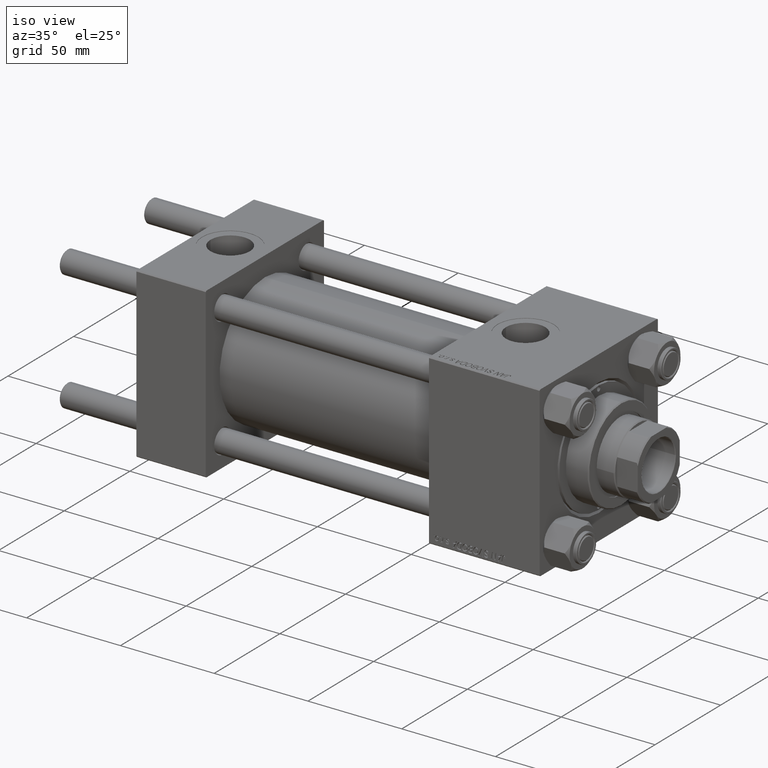
[diagram: clean part render]
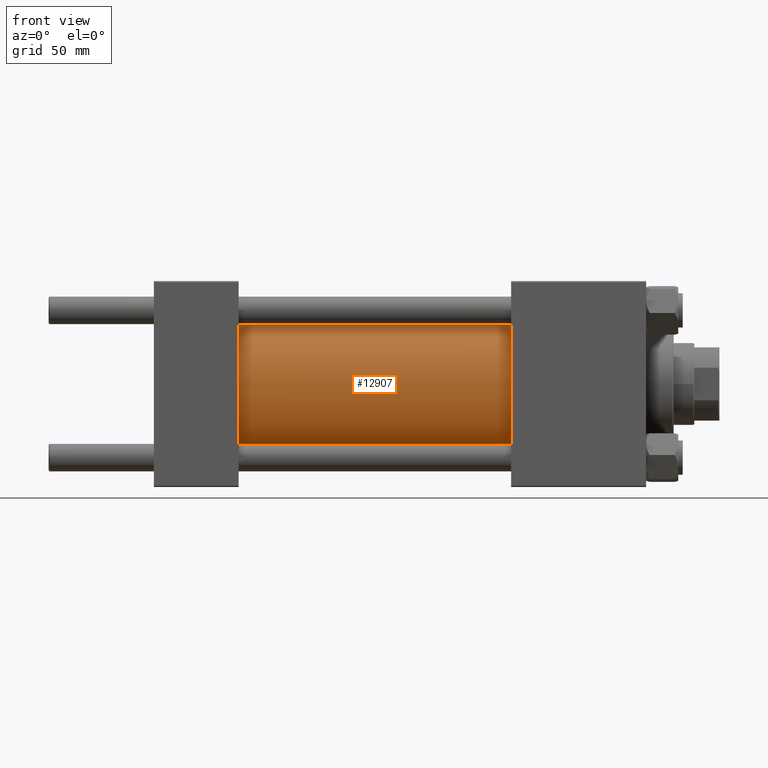
[diagram: tour spotlight — one face highlighted and labeled with its STEP entity id]
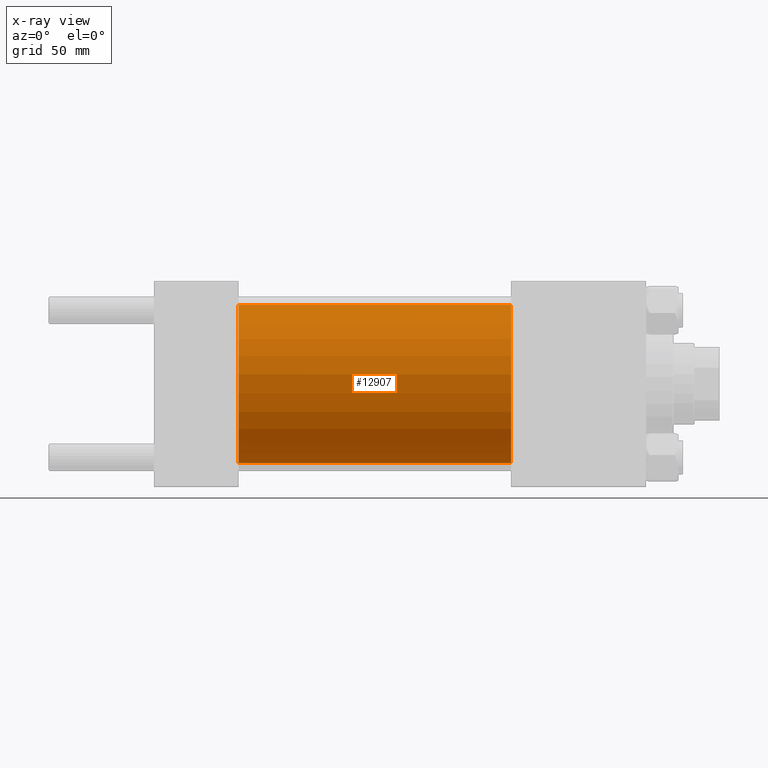
[diagram: x-ray of the same camera — body ghosted, this tour face saturated]
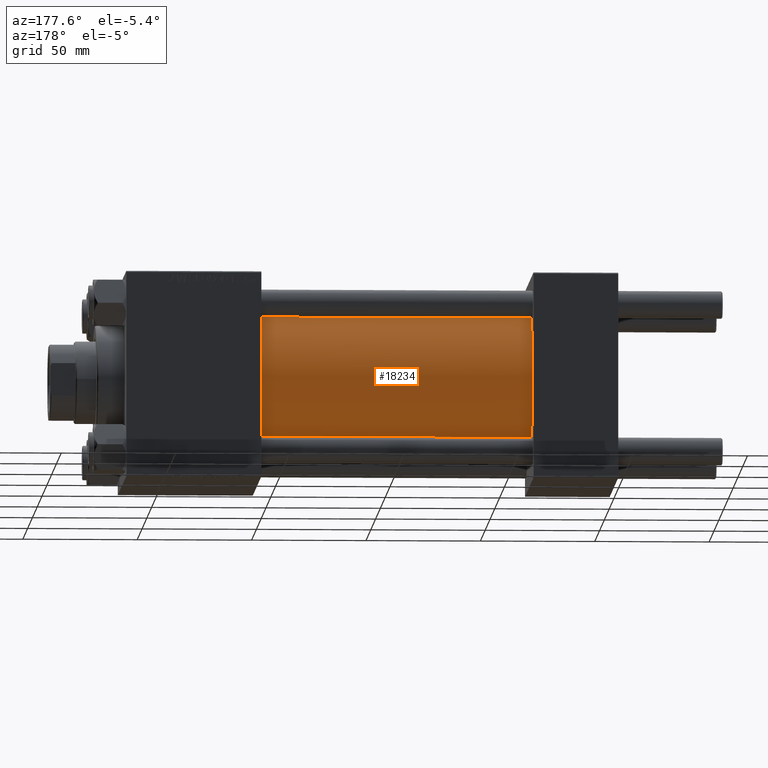
[diagram: tour spotlight — one face highlighted and labeled with its STEP entity id]
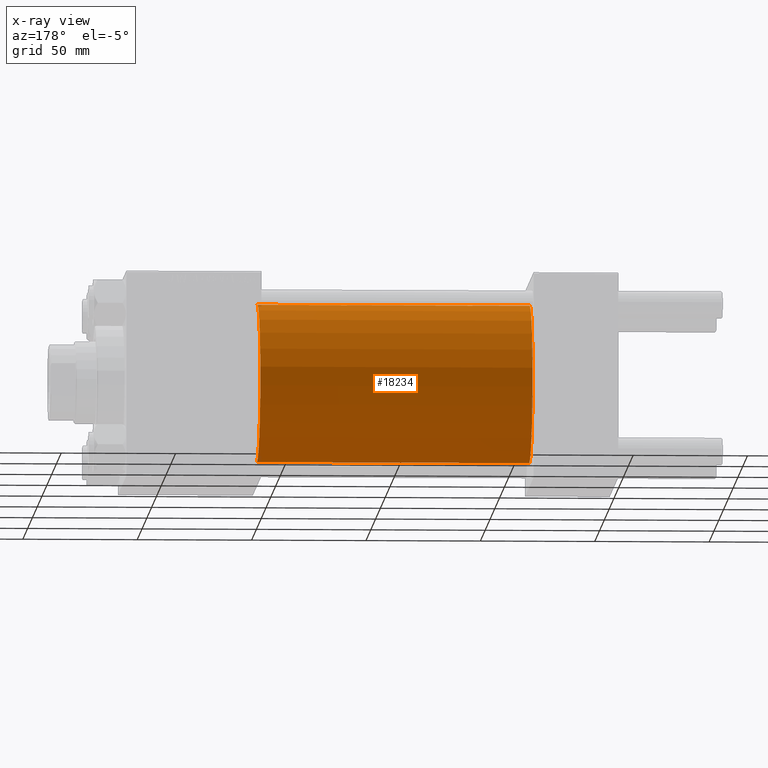
[diagram: x-ray of the same camera — body ghosted, this tour face saturated]
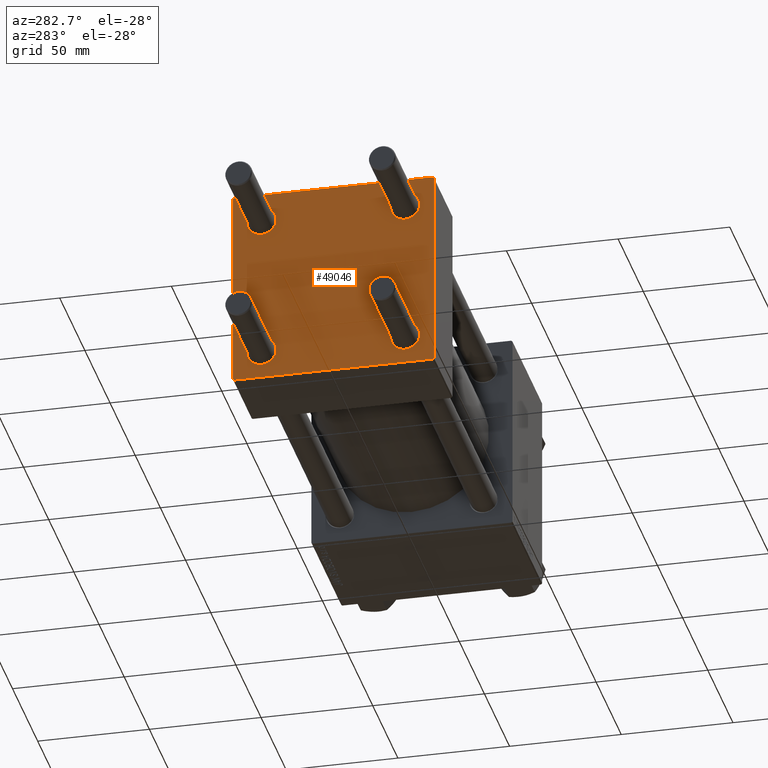
[diagram: tour spotlight — one face highlighted and labeled with its STEP entity id]
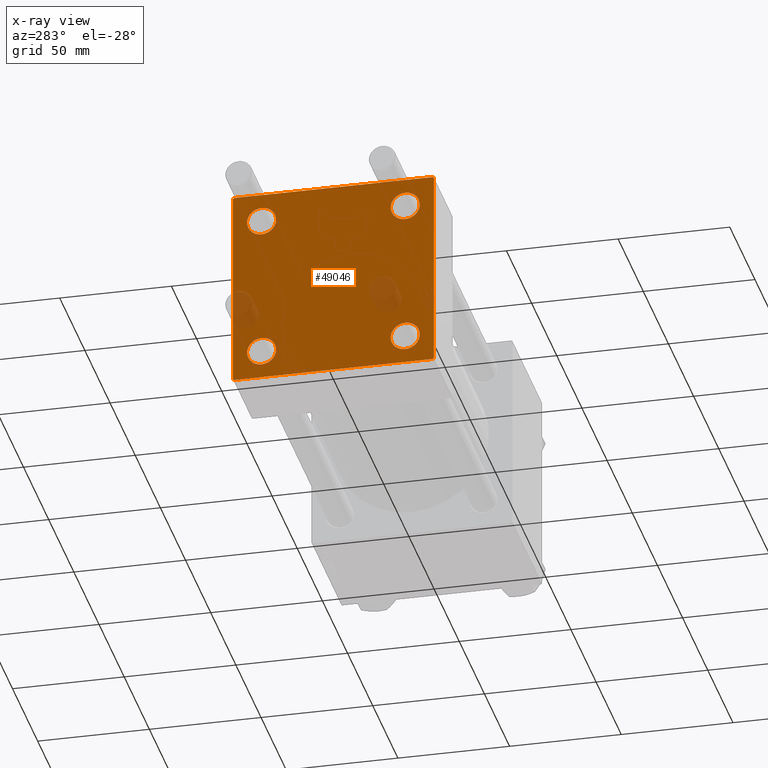
[diagram: x-ray of the same camera — body ghosted, this tour face saturated]
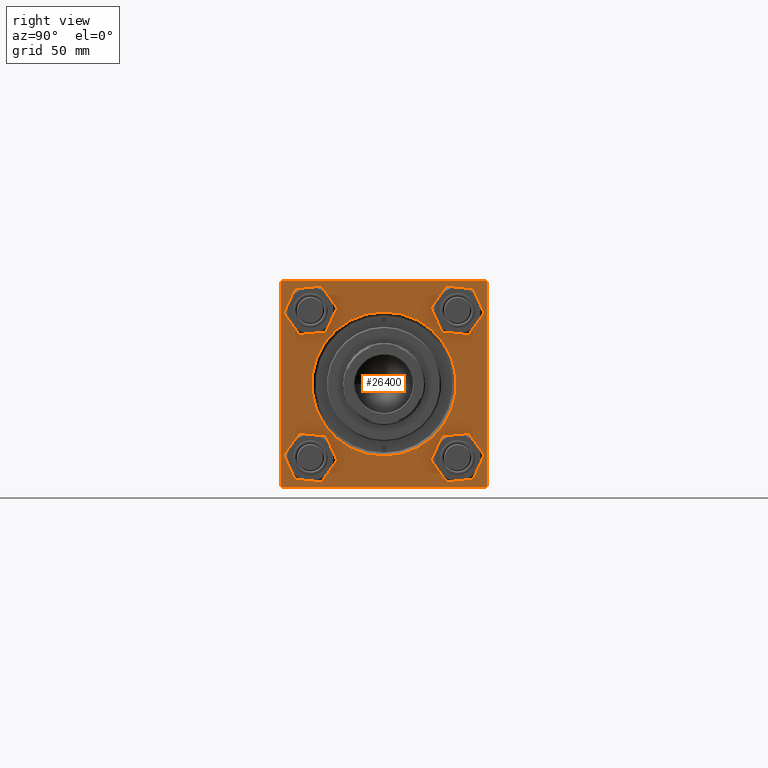
[diagram: tour spotlight — one face highlighted and labeled with its STEP entity id]
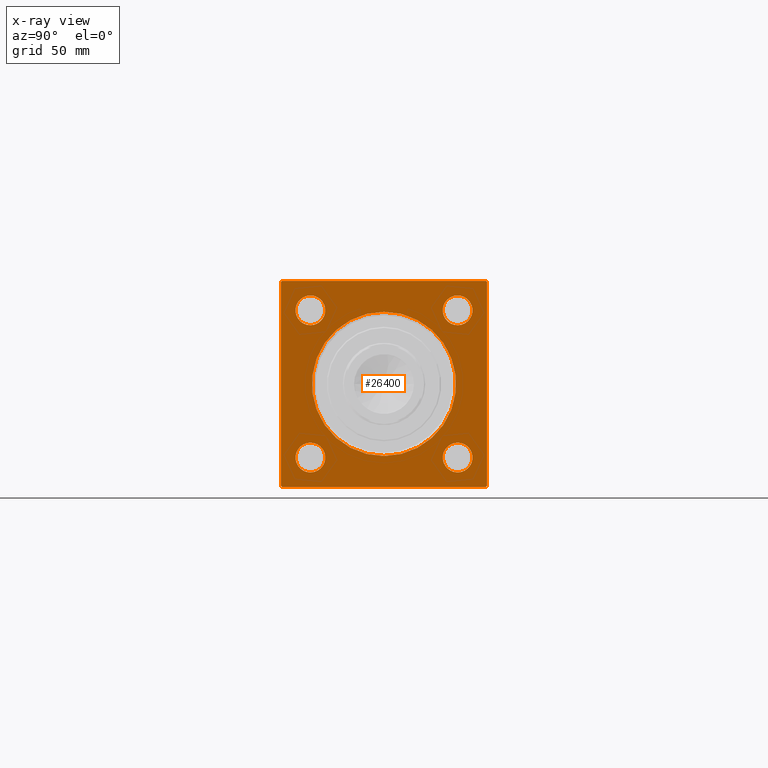
[diagram: x-ray of the same camera — body ghosted, this tour face saturated]
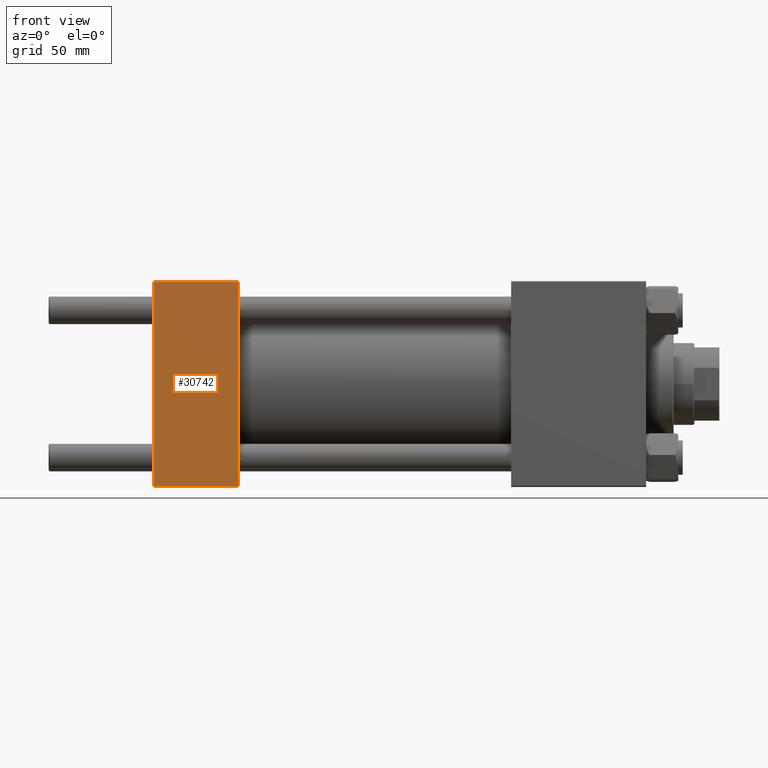
[diagram: tour spotlight — one face highlighted and labeled with its STEP entity id]
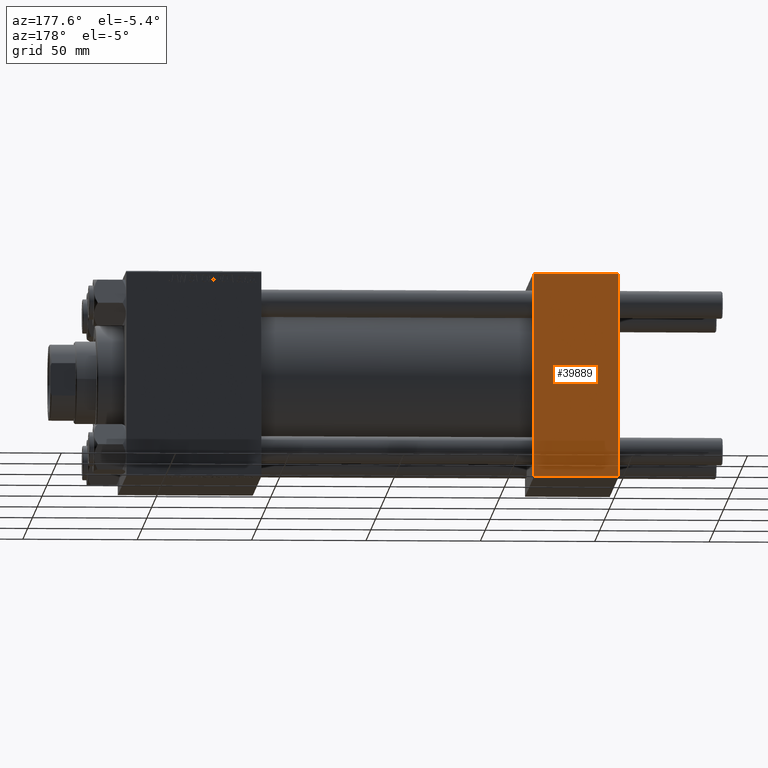
[diagram: tour spotlight — one face highlighted and labeled with its STEP entity id]
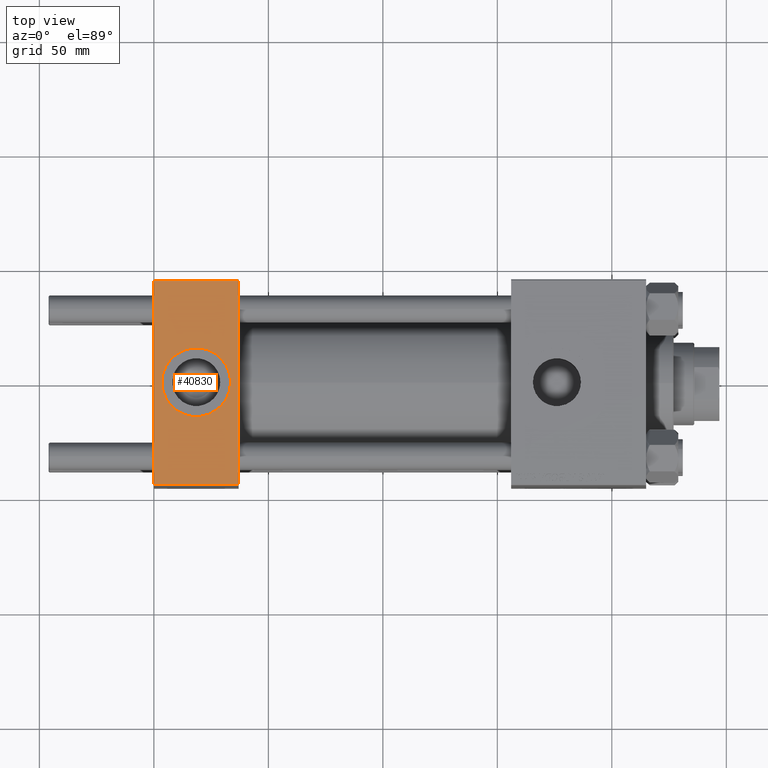
[diagram: tour spotlight — one face highlighted and labeled with its STEP entity id]
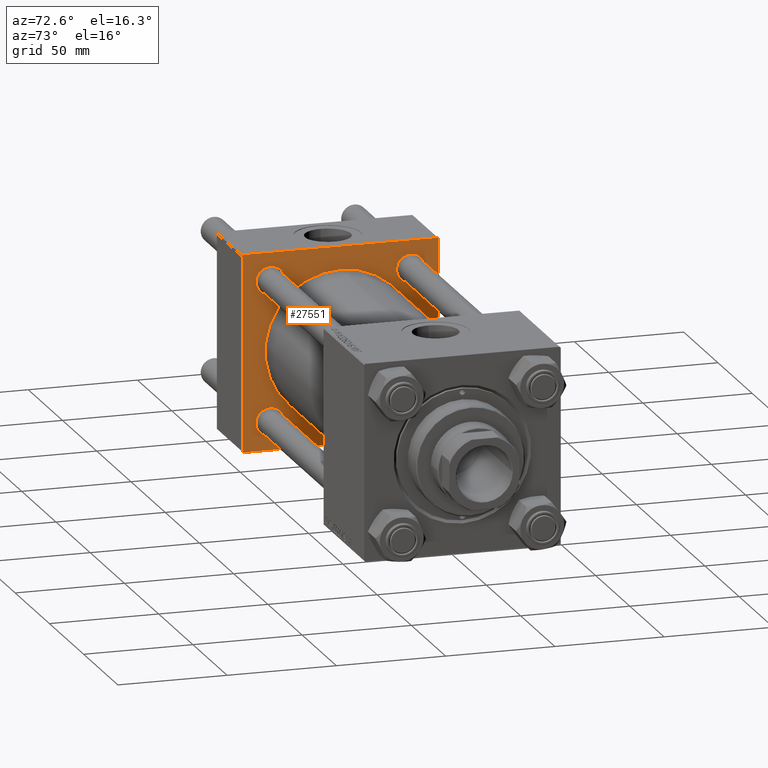
[diagram: tour spotlight — one face highlighted and labeled with its STEP entity id]
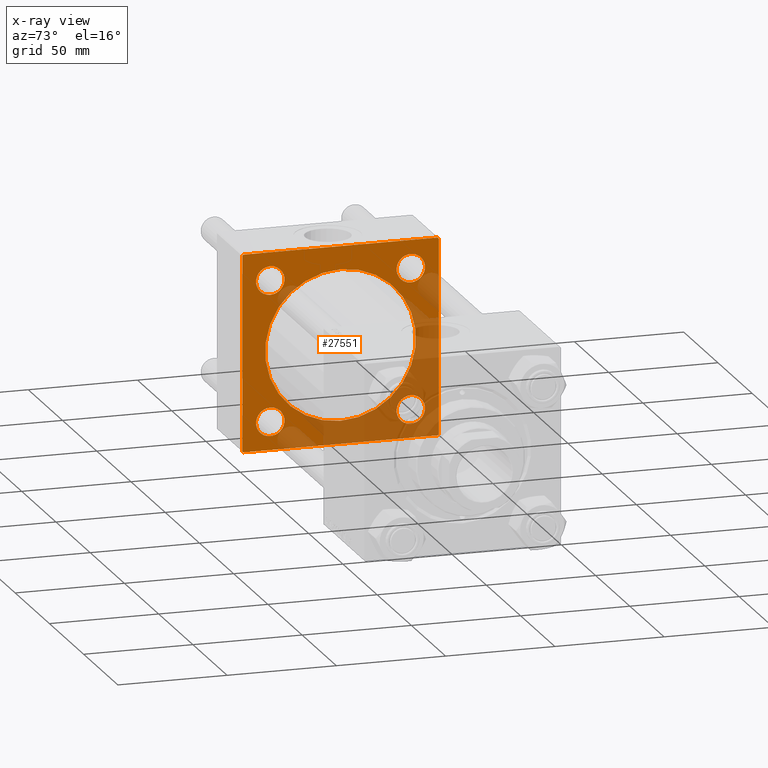
[diagram: x-ray of the same camera — body ghosted, this tour face saturated]
A machine part: a face-by-face anatomy tour. The part has 1140 B-rep faces; the first image is the clean iso view, then the 8 largest visible faces are spotlighted one at a time (largest first), each with its STEP entity span.

Face 1 — front view, entity #12907. An x-ray twin of the same camera follows (body ghosted, this face saturated) — the face is partly hidden behind the body. In plain terms, the highlighted cylindrical surface (partial cylindrical patch) has radius 34.5 mm, axis along (-1, -0, -0).
Definition (entity closure, byte-faithful):
#409 = VERTEX_POINT ( 'NONE', #9932 ) ;
#460 = VERTEX_POINT ( 'NONE', #28793 ) ;
#2540 = CIRCLE ( 'NONE', #45284, 34.49999999999999289 ) ;
#4581 = DIRECTION ( 'NONE',  ( 1.000000000000000000, 0.000000000000000000, 0.000000000000000000 ) ) ;
#7330 = DIRECTION ( 'NONE',  ( -1.000000000000000000, -0.000000000000000000, -0.000000000000000000 ) ) ;
#8657 = LINE ( 'NONE', #20037, #11893 ) ;
#9633 = FACE_OUTER_BOUND ( 'NONE', #15064, .T. ) ;
#9932 = CARTESIAN_POINT ( 'NONE',  ( 156.0000000000000000, 0.000000000000000000, 34.49999999999999289 ) ) ;
#11893 = VECTOR ( 'NONE', #42517, 1000.000000000000000 ) ;
#12907 = ADVANCED_FACE ( 'NONE', ( #9633 ), #39949, .T. ) ;
#12992 = EDGE_CURVE ( 'NONE', #409, #460, #30079, .T. ) ;
#13171 = CARTESIAN_POINT ( 'NONE',  ( 156.0000000000000000, 0.000000000000000000, 0.000000000000000000 ) ) ;
#15064 = EDGE_LOOP ( 'NONE', ( #48266, #37659, #46617, #37547 ) ) ;
#15954 = CIRCLE ( 'NONE', #20010, 34.49999999999999289 ) ;
#16057 = DIRECTION ( 'NONE',  ( 0.000000000000000000, 0.000000000000000000, 1.000000000000000000 ) ) ;
#16318 = CARTESIAN_POINT ( 'NONE',  ( 37.00000000000000711, 0.000000000000000000, 0.000000000000000000 ) ) ;
#20010 = AXIS2_PLACEMENT_3D ( 'NONE', #27313, #4581, #28064 ) ;
#20037 = CARTESIAN_POINT ( 'NONE',  ( 156.0000000000000000, 4.225031457058367344E-15, -34.49999999999999289 ) ) ;
#20406 = VERTEX_POINT ( 'NONE', #42667 ) ;
#23202 = CARTESIAN_POINT ( 'NONE',  ( 156.0000000000000000, 4.225031457058367344E-15, -34.49999999999999289 ) ) ;
#24506 = EDGE_CURVE ( 'NONE', #460, #20406, #2540, .T. ) ;
#25309 = DIRECTION ( 'NONE',  ( 0.000000000000000000, 0.000000000000000000, 1.000000000000000000 ) ) ;
#25906 = VECTOR ( 'NONE', #7330, 1000.000000000000000 ) ;
#26528 = CARTESIAN_POINT ( 'NONE',  ( 156.0000000000000000, 0.000000000000000000, 34.49999999999999289 ) ) ;
#27313 = CARTESIAN_POINT ( 'NONE',  ( 156.0000000000000000, 0.000000000000000000, 0.000000000000000000 ) ) ;
#28064 = DIRECTION ( 'NONE',  ( 0.000000000000000000, 0.000000000000000000, -1.000000000000000000 ) ) ;
#28793 = CARTESIAN_POINT ( 'NONE',  ( 37.00000000000000711, 0.000000000000000000, 34.49999999999999289 ) ) ;
#30079 = LINE ( 'NONE', #26528, #25906 ) ;
#32873 = DIRECTION ( 'NONE',  ( -1.000000000000000000, -0.000000000000000000, -0.000000000000000000 ) ) ;
#37547 = ORIENTED_EDGE ( 'NONE', *, *, #24506, .T. ) ;
#37659 = ORIENTED_EDGE ( 'NONE', *, *, #44802, .F. ) ;
#39949 = CYLINDRICAL_SURFACE ( 'NONE', #47702, 34.49999999999999289 ) ;
#42517 = DIRECTION ( 'NONE',  ( -1.000000000000000000, -0.000000000000000000, -0.000000000000000000 ) ) ;
#42667 = CARTESIAN_POINT ( 'NONE',  ( 37.00000000000000711, 4.225031457058367344E-15, -34.49999999999999289 ) ) ;
#42870 = VERTEX_POINT ( 'NONE', #23202 ) ;
#43339 = DIRECTION ( 'NONE',  ( 1.000000000000000000, -0.000000000000000000, 0.000000000000000000 ) ) ;
#43549 = EDGE_CURVE ( 'NONE', #42870, #20406, #8657, .T. ) ;
#44802 = EDGE_CURVE ( 'NONE', #409, #42870, #15954, .T. ) ;
#45284 = AXIS2_PLACEMENT_3D ( 'NONE', #16318, #43339, #16057 ) ;
#46617 = ORIENTED_EDGE ( 'NONE', *, *, #12992, .T. ) ;
#47702 = AXIS2_PLACEMENT_3D ( 'NONE', #13171, #32873, #25309 ) ;
#48266 = ORIENTED_EDGE ( 'NONE', *, *, #43549, .F. ) ;

Face 2 — auxiliary view, entity #18234. An x-ray twin of the same camera follows (body ghosted, this face saturated) — the face is partly hidden behind the body. In plain terms, the highlighted cylindrical surface (partial cylindrical patch) has radius 34.5 mm, axis along (-1, -0, -0).
Definition (entity closure, byte-faithful):
#409 = VERTEX_POINT ( 'NONE', #9932 ) ;
#460 = VERTEX_POINT ( 'NONE', #28793 ) ;
#3969 = EDGE_CURVE ( 'NONE', #42870, #409, #35462, .T. ) ;
#4010 = AXIS2_PLACEMENT_3D ( 'NONE', #30417, #42777, #23355 ) ;
#6876 = DIRECTION ( 'NONE',  ( 1.000000000000000000, -0.000000000000000000, 0.000000000000000000 ) ) ;
#7330 = DIRECTION ( 'NONE',  ( -1.000000000000000000, -0.000000000000000000, -0.000000000000000000 ) ) ;
#8657 = LINE ( 'NONE', #20037, #11893 ) ;
#8660 = ORIENTED_EDGE ( 'NONE', *, *, #43549, .T. ) ;
#9932 = CARTESIAN_POINT ( 'NONE',  ( 156.0000000000000000, 0.000000000000000000, 34.49999999999999289 ) ) ;
#10119 = FACE_OUTER_BOUND ( 'NONE', #12543, .T. ) ;
#10906 = DIRECTION ( 'NONE',  ( 0.000000000000000000, 0.000000000000000000, 1.000000000000000000 ) ) ;
#11570 = AXIS2_PLACEMENT_3D ( 'NONE', #48758, #16946, #25053 ) ;
#11893 = VECTOR ( 'NONE', #42517, 1000.000000000000000 ) ;
#12543 = EDGE_LOOP ( 'NONE', ( #17525, #8660, #30344, #41720 ) ) ;
#12992 = EDGE_CURVE ( 'NONE', #409, #460, #30079, .T. ) ;
#16946 = DIRECTION ( 'NONE',  ( -1.000000000000000000, -0.000000000000000000, -0.000000000000000000 ) ) ;
#17525 = ORIENTED_EDGE ( 'NONE', *, *, #3969, .F. ) ;
#17585 = CIRCLE ( 'NONE', #26459, 34.49999999999999289 ) ;
#18234 = ADVANCED_FACE ( 'NONE', ( #10119 ), #40691, .T. ) ;
#20037 = CARTESIAN_POINT ( 'NONE',  ( 156.0000000000000000, 4.225031457058367344E-15, -34.49999999999999289 ) ) ;
#20406 = VERTEX_POINT ( 'NONE', #42667 ) ;
#23202 = CARTESIAN_POINT ( 'NONE',  ( 156.0000000000000000, 4.225031457058367344E-15, -34.49999999999999289 ) ) ;
#23355 = DIRECTION ( 'NONE',  ( 0.000000000000000000, 0.000000000000000000, -1.000000000000000000 ) ) ;
#25053 = DIRECTION ( 'NONE',  ( 0.000000000000000000, 0.000000000000000000, 1.000000000000000000 ) ) ;
#25906 = VECTOR ( 'NONE', #7330, 1000.000000000000000 ) ;
#26459 = AXIS2_PLACEMENT_3D ( 'NONE', #38187, #6876, #10906 ) ;
#26528 = CARTESIAN_POINT ( 'NONE',  ( 156.0000000000000000, 0.000000000000000000, 34.49999999999999289 ) ) ;
#28793 = CARTESIAN_POINT ( 'NONE',  ( 37.00000000000000711, 0.000000000000000000, 34.49999999999999289 ) ) ;
#30079 = LINE ( 'NONE', #26528, #25906 ) ;
#30344 = ORIENTED_EDGE ( 'NONE', *, *, #45017, .T. ) ;
#30417 = CARTESIAN_POINT ( 'NONE',  ( 156.0000000000000000, 0.000000000000000000, 0.000000000000000000 ) ) ;
#35462 = CIRCLE ( 'NONE', #4010, 34.49999999999999289 ) ;
#38187 = CARTESIAN_POINT ( 'NONE',  ( 37.00000000000000711, 0.000000000000000000, 0.000000000000000000 ) ) ;
#40691 = CYLINDRICAL_SURFACE ( 'NONE', #11570, 34.49999999999999289 ) ;
#41720 = ORIENTED_EDGE ( 'NONE', *, *, #12992, .F. ) ;
#42517 = DIRECTION ( 'NONE',  ( -1.000000000000000000, -0.000000000000000000, -0.000000000000000000 ) ) ;
#42667 = CARTESIAN_POINT ( 'NONE',  ( 37.00000000000000711, 4.225031457058367344E-15, -34.49999999999999289 ) ) ;
#42777 = DIRECTION ( 'NONE',  ( 1.000000000000000000, 0.000000000000000000, 0.000000000000000000 ) ) ;
#42870 = VERTEX_POINT ( 'NONE', #23202 ) ;
#43549 = EDGE_CURVE ( 'NONE', #42870, #20406, #8657, .T. ) ;
#45017 = EDGE_CURVE ( 'NONE', #20406, #460, #17585, .T. ) ;
#48758 = CARTESIAN_POINT ( 'NONE',  ( 156.0000000000000000, 0.000000000000000000, 0.000000000000000000 ) ) ;

Face 3 — auxiliary view, entity #49046. An x-ray twin of the same camera follows (body ghosted, this face saturated) — the face is partly hidden behind the body. In plain terms, the highlighted planar face has unit normal (-1, 0, 0).
Definition (entity closure, byte-faithful):
#258 = EDGE_LOOP ( 'NONE', ( #13670, #21084 ) ) ;
#435 = CARTESIAN_POINT ( 'NONE',  ( 0.000000000000000000, 32.14999999999999147, -32.15000000000000568 ) ) ;
#646 = CARTESIAN_POINT ( 'NONE',  ( 0.000000000000000000, -45.00000000000000000, -44.49999999999995737 ) ) ;
#891 = CARTESIAN_POINT ( 'NONE',  ( 0.000000000000000000, 44.74999999999998579, -44.74999999999998579 ) ) ;
#1027 = ORIENTED_EDGE ( 'NONE', *, *, #6129, .T. ) ;
#1135 = AXIS2_PLACEMENT_3D ( 'NONE', #4703, #4456, #19863 ) ;
#1185 = DIRECTION ( 'NONE',  ( 0.000000000000000000, 0.000000000000000000, 1.000000000000000000 ) ) ;
#2397 = ORIENTED_EDGE ( 'NONE', *, *, #17358, .T. ) ;
#2469 = CIRCLE ( 'NONE', #46806, 6.499999999999977796 ) ;
#2511 = EDGE_CURVE ( 'NONE', #36165, #27902, #21237, .T. ) ;
#2529 = VERTEX_POINT ( 'NONE', #33093 ) ;
#2666 = CARTESIAN_POINT ( 'NONE',  ( 0.000000000000000000, 44.99999999999998579, -44.49999999999995737 ) ) ;
#2681 = VECTOR ( 'NONE', #19596, 1000.000000000000114 ) ;
#3439 = CARTESIAN_POINT ( 'NONE',  ( 0.000000000000000000, 32.14999999999999147, -25.65000000000002700 ) ) ;
#3701 = LINE ( 'NONE', #11519, #36542 ) ;
#3747 = CIRCLE ( 'NONE', #24726, 6.499999999999977796 ) ;
#3879 = LINE ( 'NONE', #12450, #26330 ) ;
#3947 = FACE_BOUND ( 'NONE', #31061, .T. ) ;
#4376 = DIRECTION ( 'NONE',  ( 0.000000000000000000, 0.000000000000000000, 1.000000000000000000 ) ) ;
#4456 = DIRECTION ( 'NONE',  ( 1.000000000000000000, -0.000000000000000000, 0.000000000000000000 ) ) ;
#4550 = DIRECTION ( 'NONE',  ( 1.000000000000000000, -0.000000000000000000, 0.000000000000000000 ) ) ;
#4703 = CARTESIAN_POINT ( 'NONE',  ( 0.000000000000000000, 32.14999999999999147, 32.15000000000000568 ) ) ;
#4928 = CARTESIAN_POINT ( 'NONE',  ( 0.000000000000000000, -32.14999999999997726, 25.64999999999999147 ) ) ;
#5579 = DIRECTION ( 'NONE',  ( 0.000000000000000000, -1.000000000000000000, -1.541976423090495387E-16 ) ) ;
#6129 = EDGE_CURVE ( 'NONE', #41997, #25554, #37887, .T. ) ;
#6545 = EDGE_CURVE ( 'NONE', #2529, #40037, #2469, .T. ) ;
#6915 = CARTESIAN_POINT ( 'NONE',  ( 0.000000000000000000, 32.14999999999999147, -32.15000000000000568 ) ) ;
#6989 = EDGE_CURVE ( 'NONE', #11253, #12511, #24880, .T. ) ;
#6991 = PLANE ( 'NONE',  #32316 ) ;
#7311 = EDGE_CURVE ( 'NONE', #26851, #41337, #37976, .T. ) ;
#8755 = DIRECTION ( 'NONE',  ( 1.000000000000000000, -0.000000000000000000, 0.000000000000000000 ) ) ;
#8873 = VECTOR ( 'NONE', #37642, 1000.000000000000000 ) ;
#8893 = ORIENTED_EDGE ( 'NONE', *, *, #7311, .T. ) ;
#9709 = VECTOR ( 'NONE', #39763, 1000.000000000000000 ) ;
#11015 = DIRECTION ( 'NONE',  ( 0.000000000000000000, 7.709882115452476934E-17, -1.000000000000000000 ) ) ;
#11253 = VERTEX_POINT ( 'NONE', #37334 ) ;
#11300 = EDGE_LOOP ( 'NONE', ( #2397, #24642 ) ) ;
#11519 = CARTESIAN_POINT ( 'NONE',  ( 0.000000000000000000, -45.00000000000000711, 45.00000000000000000 ) ) ;
#12114 = CARTESIAN_POINT ( 'NONE',  ( 0.000000000000000000, -32.14999999999997726, 32.15000000000001279 ) ) ;
#12450 = CARTESIAN_POINT ( 'NONE',  ( -0.000000000000000000, -44.75000000000029843, 44.74999999999967315 ) ) ;
#12485 = CARTESIAN_POINT ( 'NONE',  ( 0.000000000000000000, -44.49999999999995737, -45.00000000000000000 ) ) ;
#12511 = VERTEX_POINT ( 'NONE', #12485 ) ;
#12866 = ORIENTED_EDGE ( 'NONE', *, *, #27562, .F. ) ;
#12912 = CARTESIAN_POINT ( 'NONE',  ( 0.000000000000000000, -32.14999999999997726, -32.15000000000001279 ) ) ;
#13061 = CARTESIAN_POINT ( 'NONE',  ( 0.000000000000000000, -45.00000000000000711, 44.49999999999997158 ) ) ;
#13639 = CARTESIAN_POINT ( 'NONE',  ( 0.000000000000000000, 44.99999999999998579, 45.00000000000001421 ) ) ;
#13670 = ORIENTED_EDGE ( 'NONE', *, *, #20270, .T. ) ;
#13756 = CARTESIAN_POINT ( 'NONE',  ( 0.000000000000000000, -44.49999999999995737, 45.00000000000000000 ) ) ;
#14211 = CIRCLE ( 'NONE', #45637, 6.499999999999977796 ) ;
#15761 = EDGE_CURVE ( 'NONE', #36165, #41997, #25739, .T. ) ;
#16452 = DIRECTION ( 'NONE',  ( 1.000000000000000000, -0.000000000000000000, 0.000000000000000000 ) ) ;
#17358 = EDGE_CURVE ( 'NONE', #39410, #20184, #30902, .T. ) ;
#18445 = ORIENTED_EDGE ( 'NONE', *, *, #24524, .T. ) ;
#18632 = VERTEX_POINT ( 'NONE', #36224 ) ;
#18860 = CARTESIAN_POINT ( 'NONE',  ( 0.000000000000000000, 0.000000000000000000, 0.000000000000000000 ) ) ;
#19193 = CARTESIAN_POINT ( 'NONE',  ( 0.000000000000000000, 44.99999999999998579, 45.00000000000001421 ) ) ;
#19596 = DIRECTION ( 'NONE',  ( -0.000000000000000000, -0.7071067811865474617, -0.7071067811865474617 ) ) ;
#19863 = DIRECTION ( 'NONE',  ( 0.000000000000000000, 0.000000000000000000, 1.000000000000000000 ) ) ;
#19955 = DIRECTION ( 'NONE',  ( 0.000000000000000000, 0.000000000000000000, 1.000000000000000000 ) ) ;
#20184 = VERTEX_POINT ( 'NONE', #39432 ) ;
#20270 = EDGE_CURVE ( 'NONE', #18632, #40203, #38021, .T. ) ;
#21084 = ORIENTED_EDGE ( 'NONE', *, *, #34239, .T. ) ;
#21237 = LINE ( 'NONE', #13639, #49070 ) ;
#22333 = DIRECTION ( 'NONE',  ( 1.000000000000000000, -0.000000000000000000, 0.000000000000000000 ) ) ;
#23541 = VECTOR ( 'NONE', #28193, 1000.000000000000114 ) ;
#23923 = CARTESIAN_POINT ( 'NONE',  ( 0.000000000000000000, -44.74999999999998579, -44.74999999999998579 ) ) ;
#24524 = EDGE_CURVE ( 'NONE', #12511, #29789, #36014, .T. ) ;
#24574 = DIRECTION ( 'NONE',  ( 1.000000000000000000, -0.000000000000000000, 0.000000000000000000 ) ) ;
#24638 = EDGE_LOOP ( 'NONE', ( #37256, #27556 ) ) ;
#24642 = ORIENTED_EDGE ( 'NONE', *, *, #30538, .T. ) ;
#24726 = AXIS2_PLACEMENT_3D ( 'NONE', #6915, #22333, #4376 ) ;
#24880 = LINE ( 'NONE', #32933, #9709 ) ;
#25554 = VERTEX_POINT ( 'NONE', #2666 ) ;
#25739 = LINE ( 'NONE', #32574, #37329 ) ;
#25914 = AXIS2_PLACEMENT_3D ( 'NONE', #31863, #16452, #32613 ) ;
#26330 = VECTOR ( 'NONE', #38986, 1000.000000000000114 ) ;
#26618 = VERTEX_POINT ( 'NONE', #13061 ) ;
#26851 = VERTEX_POINT ( 'NONE', #44253 ) ;
#27189 = FACE_BOUND ( 'NONE', #11300, .T. ) ;
#27556 = ORIENTED_EDGE ( 'NONE', *, *, #6545, .T. ) ;
#27562 = EDGE_CURVE ( 'NONE', #26618, #29789, #3701, .T. ) ;
#27805 = CARTESIAN_POINT ( 'NONE',  ( 0.000000000000000000, 44.49999999999998579, 45.00000000000001421 ) ) ;
#27902 = VERTEX_POINT ( 'NONE', #13756 ) ;
#27992 = DIRECTION ( 'NONE',  ( 0.000000000000000000, 0.000000000000000000, 1.000000000000000000 ) ) ;
#28193 = DIRECTION ( 'NONE',  ( 0.000000000000000000, -0.7071067811865474617, 0.7071067811865474617 ) ) ;
#28344 = DIRECTION ( 'NONE',  ( 0.000000000000000000, 0.000000000000000000, 1.000000000000000000 ) ) ;
#28895 = EDGE_CURVE ( 'NONE', #25554, #11253, #46854, .T. ) ;
#29049 = ORIENTED_EDGE ( 'NONE', *, *, #2511, .F. ) ;
#29325 = AXIS2_PLACEMENT_3D ( 'NONE', #35097, #34592, #31046 ) ;
#29789 = VERTEX_POINT ( 'NONE', #646 ) ;
#29985 = FACE_OUTER_BOUND ( 'NONE', #30327, .T. ) ;
#30092 = ORIENTED_EDGE ( 'NONE', *, *, #36405, .T. ) ;
#30289 = AXIS2_PLACEMENT_3D ( 'NONE', #12114, #4550, #19955 ) ;
#30327 = EDGE_LOOP ( 'NONE', ( #1027, #32271, #45522, #18445, #12866, #39900, #29049, #34711 ) ) ;
#30517 = CARTESIAN_POINT ( 'NONE',  ( 0.000000000000000000, -32.14999999999997726, -32.15000000000001279 ) ) ;
#30538 = EDGE_CURVE ( 'NONE', #20184, #39410, #44674, .T. ) ;
#30902 = CIRCLE ( 'NONE', #29325, 6.499999999999977796 ) ;
#31046 = DIRECTION ( 'NONE',  ( 0.000000000000000000, 0.000000000000000000, 1.000000000000000000 ) ) ;
#31061 = EDGE_LOOP ( 'NONE', ( #30092, #8893 ) ) ;
#31863 = CARTESIAN_POINT ( 'NONE',  ( 0.000000000000000000, -32.14999999999997726, 32.15000000000001279 ) ) ;
#32007 = CARTESIAN_POINT ( 'NONE',  ( 0.000000000000000000, 44.99999999999998579, 44.50000000000001421 ) ) ;
#32271 = ORIENTED_EDGE ( 'NONE', *, *, #28895, .T. ) ;
#32316 = AXIS2_PLACEMENT_3D ( 'NONE', #18860, #37805, #34268 ) ;
#32574 = CARTESIAN_POINT ( 'NONE',  ( 0.000000000000000000, 44.74999999999999289, 44.74999999999999289 ) ) ;
#32613 = DIRECTION ( 'NONE',  ( 0.000000000000000000, 0.000000000000000000, 1.000000000000000000 ) ) ;
#32933 = CARTESIAN_POINT ( 'NONE',  ( 0.000000000000000000, 44.99999999999998579, -44.99999999999998579 ) ) ;
#33093 = CARTESIAN_POINT ( 'NONE',  ( 0.000000000000000000, 32.14999999999999147, -38.64999999999998437 ) ) ;
#34024 = FACE_BOUND ( 'NONE', #24638, .T. ) ;
#34239 = EDGE_CURVE ( 'NONE', #40203, #18632, #48818, .T. ) ;
#34268 = DIRECTION ( 'NONE',  ( -0.000000000000000000, 0.000000000000000000, 1.000000000000000000 ) ) ;
#34592 = DIRECTION ( 'NONE',  ( 1.000000000000000000, -0.000000000000000000, 0.000000000000000000 ) ) ;
#34711 = ORIENTED_EDGE ( 'NONE', *, *, #15761, .T. ) ;
#35097 = CARTESIAN_POINT ( 'NONE',  ( 0.000000000000000000, 32.14999999999999147, 32.15000000000000568 ) ) ;
#36014 = LINE ( 'NONE', #23923, #23541 ) ;
#36165 = VERTEX_POINT ( 'NONE', #27805 ) ;
#36224 = CARTESIAN_POINT ( 'NONE',  ( 0.000000000000000000, -32.14999999999997726, 38.65000000000003411 ) ) ;
#36405 = EDGE_CURVE ( 'NONE', #41337, #26851, #14211, .T. ) ;
#36542 = VECTOR ( 'NONE', #11015, 1000.000000000000000 ) ;
#36856 = DIRECTION ( 'NONE',  ( 0.000000000000000000, 0.7071067811865474617, -0.7071067811865474617 ) ) ;
#37186 = AXIS2_PLACEMENT_3D ( 'NONE', #12912, #24574, #28344 ) ;
#37256 = ORIENTED_EDGE ( 'NONE', *, *, #40279, .T. ) ;
#37329 = VECTOR ( 'NONE', #36856, 1000.000000000000114 ) ;
#37334 = CARTESIAN_POINT ( 'NONE',  ( 0.000000000000000000, 44.49999999999998579, -44.99999999999998579 ) ) ;
#37642 = DIRECTION ( 'NONE',  ( 0.000000000000000000, 0.000000000000000000, -1.000000000000000000 ) ) ;
#37805 = DIRECTION ( 'NONE',  ( -1.000000000000000000, 0.000000000000000000, -0.000000000000000000 ) ) ;
#37887 = LINE ( 'NONE', #19193, #8873 ) ;
#37976 = CIRCLE ( 'NONE', #37186, 6.499999999999977796 ) ;
#38021 = CIRCLE ( 'NONE', #25914, 6.500000000000019540 ) ;
#38986 = DIRECTION ( 'NONE',  ( -0.000000000000000000, 0.7071067811865425767, 0.7071067811865524577 ) ) ;
#39410 = VERTEX_POINT ( 'NONE', #45534 ) ;
#39432 = CARTESIAN_POINT ( 'NONE',  ( 0.000000000000000000, 32.14999999999999147, 25.65000000000002700 ) ) ;
#39763 = DIRECTION ( 'NONE',  ( 0.000000000000000000, -1.000000000000000000, -1.541976423090495633E-16 ) ) ;
#39900 = ORIENTED_EDGE ( 'NONE', *, *, #41175, .T. ) ;
#40037 = VERTEX_POINT ( 'NONE', #3439 ) ;
#40203 = VERTEX_POINT ( 'NONE', #4928 ) ;
#40279 = EDGE_CURVE ( 'NONE', #40037, #2529, #3747, .T. ) ;
#41175 = EDGE_CURVE ( 'NONE', #26618, #27902, #3879, .T. ) ;
#41337 = VERTEX_POINT ( 'NONE', #41463 ) ;
#41463 = CARTESIAN_POINT ( 'NONE',  ( 0.000000000000000000, -32.14999999999997726, -25.65000000000003411 ) ) ;
#41594 = FACE_BOUND ( 'NONE', #258, .T. ) ;
#41997 = VERTEX_POINT ( 'NONE', #32007 ) ;
#44253 = CARTESIAN_POINT ( 'NONE',  ( 0.000000000000000000, -32.14999999999997726, -38.64999999999999147 ) ) ;
#44674 = CIRCLE ( 'NONE', #1135, 6.499999999999977796 ) ;
#45522 = ORIENTED_EDGE ( 'NONE', *, *, #6989, .T. ) ;
#45534 = CARTESIAN_POINT ( 'NONE',  ( 0.000000000000000000, 32.14999999999999147, 38.64999999999999147 ) ) ;
#45637 = AXIS2_PLACEMENT_3D ( 'NONE', #30517, #45912, #27992 ) ;
#45912 = DIRECTION ( 'NONE',  ( 1.000000000000000000, -0.000000000000000000, 0.000000000000000000 ) ) ;
#46806 = AXIS2_PLACEMENT_3D ( 'NONE', #435, #8755, #1185 ) ;
#46854 = LINE ( 'NONE', #891, #2681 ) ;
#48818 = CIRCLE ( 'NONE', #30289, 6.500000000000019540 ) ;
#49046 = ADVANCED_FACE ( 'NONE', ( #41594, #3947, #34024, #27189, #29985 ), #6991, .T. ) ;
#49070 = VECTOR ( 'NONE', #5579, 1000.000000000000000 ) ;

Face 4 — right view, entity #26400. An x-ray twin of the same camera follows (body ghosted, this face saturated) — the face is partly hidden behind the body. In plain terms, the highlighted planar face has unit normal (-1, 0, 0).
Definition (entity closure, byte-faithful):
#37 = CIRCLE ( 'NONE', #20208, 6.500000000000033751 ) ;
#80 = CIRCLE ( 'NONE', #36434, 6.500000000000033751 ) ;
#660 = DIRECTION ( 'NONE',  ( 0.000000000000000000, 0.000000000000000000, 1.000000000000000000 ) ) ;
#863 = DIRECTION ( 'NONE',  ( -1.000000000000000000, -0.000000000000000000, -0.000000000000000000 ) ) ;
#1187 = CARTESIAN_POINT ( 'NONE',  ( 215.0000000000000000, -32.14999999999997726, 25.64999999999997726 ) ) ;
#1328 = EDGE_LOOP ( 'NONE', ( #32868, #15333 ) ) ;
#1453 = DIRECTION ( 'NONE',  ( -0.000000000000000000, 0.7071067811865474617, 0.7071067811865474617 ) ) ;
#1595 = CARTESIAN_POINT ( 'NONE',  ( 215.0000000000000000, -44.49999999999995737, -45.00000000000000000 ) ) ;
#1902 = CARTESIAN_POINT ( 'NONE',  ( 215.0000000000000000, 0.000000000000000000, -31.49999999999997158 ) ) ;
#2633 = VERTEX_POINT ( 'NONE', #28194 ) ;
#3038 = EDGE_CURVE ( 'NONE', #39216, #23963, #36953, .T. ) ;
#3631 = EDGE_CURVE ( 'NONE', #16282, #44239, #26546, .T. ) ;
#4467 = AXIS2_PLACEMENT_3D ( 'NONE', #46521, #41496, #38454 ) ;
#5105 = VECTOR ( 'NONE', #47973, 1000.000000000000000 ) ;
#5548 = DIRECTION ( 'NONE',  ( 0.000000000000000000, 0.000000000000000000, 1.000000000000000000 ) ) ;
#6132 = CARTESIAN_POINT ( 'NONE',  ( 215.0000000000000000, -45.00000000000000000, 44.50000000000001421 ) ) ;
#6544 = CARTESIAN_POINT ( 'NONE',  ( 215.0000000000000000, 45.00000000000001421, -45.00000000000000000 ) ) ;
#6682 = AXIS2_PLACEMENT_3D ( 'NONE', #12614, #20709, #5548 ) ;
#6877 = CARTESIAN_POINT ( 'NONE',  ( 215.0000000000000000, -32.14999999999997726, -32.15000000000001279 ) ) ;
#7023 = VERTEX_POINT ( 'NONE', #17277 ) ;
#7305 = DIRECTION ( 'NONE',  ( -1.000000000000000000, -0.000000000000000000, -0.000000000000000000 ) ) ;
#7545 = VERTEX_POINT ( 'NONE', #13537 ) ;
#7780 = PLANE ( 'NONE',  #38919 ) ;
#7951 = DIRECTION ( 'NONE',  ( 0.000000000000000000, 0.000000000000000000, 1.000000000000000000 ) ) ;
#8086 = ORIENTED_EDGE ( 'NONE', *, *, #45995, .F. ) ;
#8121 = VERTEX_POINT ( 'NONE', #45478 ) ;
#8246 = DIRECTION ( 'NONE',  ( -1.000000000000000000, -0.000000000000000000, -0.000000000000000000 ) ) ;
#8698 = CARTESIAN_POINT ( 'NONE',  ( 215.0000000000000000, 32.14999999999999147, 32.15000000000000568 ) ) ;
#8858 = EDGE_LOOP ( 'NONE', ( #16658, #21480 ) ) ;
#9310 = VECTOR ( 'NONE', #36940, 1000.000000000000114 ) ;
#9491 = CARTESIAN_POINT ( 'NONE',  ( 215.0000000000000000, -44.50000000000000000, 44.99999999999998579 ) ) ;
#9755 = DIRECTION ( 'NONE',  ( -1.000000000000000000, -0.000000000000000000, -0.000000000000000000 ) ) ;
#10028 = EDGE_CURVE ( 'NONE', #23612, #39216, #28812, .T. ) ;
#10114 = CARTESIAN_POINT ( 'NONE',  ( 215.0000000000000000, 45.00000000000001421, 45.00000000000000000 ) ) ;
#10384 = DIRECTION ( 'NONE',  ( 0.000000000000000000, -1.000000000000000000, -1.541976423090495140E-16 ) ) ;
#10403 = LINE ( 'NONE', #6132, #9310 ) ;
#10687 = EDGE_CURVE ( 'NONE', #7545, #7023, #37, .T. ) ;
#10709 = CIRCLE ( 'NONE', #6682, 6.500000000000033751 ) ;
#10817 = CARTESIAN_POINT ( 'NONE',  ( 215.0000000000000000, 0.000000000000000000, 0.000000000000000000 ) ) ;
#11593 = CARTESIAN_POINT ( 'NONE',  ( 215.0000000000000000, 32.14999999999999147, -32.15000000000000568 ) ) ;
#11669 = ORIENTED_EDGE ( 'NONE', *, *, #12532, .T. ) ;
#11867 = ORIENTED_EDGE ( 'NONE', *, *, #41980, .T. ) ;
#12532 = EDGE_CURVE ( 'NONE', #30600, #21757, #42834, .T. ) ;
#12614 = CARTESIAN_POINT ( 'NONE',  ( 215.0000000000000000, -32.14999999999997726, -32.15000000000001279 ) ) ;
#12913 = ORIENTED_EDGE ( 'NONE', *, *, #15516, .T. ) ;
#13537 = CARTESIAN_POINT ( 'NONE',  ( 215.0000000000000000, -32.14999999999997726, -25.64999999999997726 ) ) ;
#15161 = LINE ( 'NONE', #37910, #39128 ) ;
#15275 = CARTESIAN_POINT ( 'NONE',  ( 215.0000000000000000, 44.50000000000001421, 45.00000000000000000 ) ) ;
#15333 = ORIENTED_EDGE ( 'NONE', *, *, #49738, .T. ) ;
#15516 = EDGE_CURVE ( 'NONE', #7023, #7545, #10709, .T. ) ;
#15626 = DIRECTION ( 'NONE',  ( 0.000000000000000000, 0.000000000000000000, 1.000000000000000000 ) ) ;
#16029 = CARTESIAN_POINT ( 'NONE',  ( 215.0000000000000000, 3.857637417314158745E-15, 31.49999999999997158 ) ) ;
#16165 = VERTEX_POINT ( 'NONE', #20341 ) ;
#16282 = VERTEX_POINT ( 'NONE', #16029 ) ;
#16382 = VECTOR ( 'NONE', #1453, 1000.000000000000114 ) ;
#16592 = CARTESIAN_POINT ( 'NONE',  ( 215.0000000000000000, 44.50000000000001421, 45.00000000000000000 ) ) ;
#16658 = ORIENTED_EDGE ( 'NONE', *, *, #44460, .T. ) ;
#17277 = CARTESIAN_POINT ( 'NONE',  ( 215.0000000000000000, -32.14999999999997726, -38.65000000000004832 ) ) ;
#17926 = ORIENTED_EDGE ( 'NONE', *, *, #10028, .T. ) ;
#17965 = VERTEX_POINT ( 'NONE', #37762 ) ;
#18094 = ORIENTED_EDGE ( 'NONE', *, *, #36819, .T. ) ;
#18394 = FACE_BOUND ( 'NONE', #26476, .T. ) ;
#18905 = FACE_BOUND ( 'NONE', #43987, .T. ) ;
#18978 = EDGE_CURVE ( 'NONE', #17965, #16165, #40766, .T. ) ;
#20149 = DIRECTION ( 'NONE',  ( 0.000000000000000000, -0.7071067811865474617, 0.7071067811865474617 ) ) ;
#20159 = LINE ( 'NONE', #24214, #16382 ) ;
#20208 = AXIS2_PLACEMENT_3D ( 'NONE', #6877, #22293, #49300 ) ;
#20341 = CARTESIAN_POINT ( 'NONE',  ( 215.0000000000000000, 32.14999999999999147, -25.64999999999997016 ) ) ;
#20709 = DIRECTION ( 'NONE',  ( -1.000000000000000000, -0.000000000000000000, -0.000000000000000000 ) ) ;
#21326 = CARTESIAN_POINT ( 'NONE',  ( 215.0000000000000000, -44.99999999999999289, -44.49999999999997158 ) ) ;
#21395 = AXIS2_PLACEMENT_3D ( 'NONE', #35465, #863, #36214 ) ;
#21480 = ORIENTED_EDGE ( 'NONE', *, *, #3631, .T. ) ;
#21555 = CARTESIAN_POINT ( 'NONE',  ( 215.0000000000000000, -44.49999999999998579, -45.00000000000000000 ) ) ;
#21757 = VERTEX_POINT ( 'NONE', #43798 ) ;
#22293 = DIRECTION ( 'NONE',  ( -1.000000000000000000, -0.000000000000000000, -0.000000000000000000 ) ) ;
#22383 = DIRECTION ( 'NONE',  ( 0.000000000000000000, 0.000000000000000000, 1.000000000000000000 ) ) ;
#22659 = VERTEX_POINT ( 'NONE', #15275 ) ;
#22896 = CARTESIAN_POINT ( 'NONE',  ( 215.0000000000000000, 44.50000000000001421, -45.00000000000000000 ) ) ;
#23300 = VECTOR ( 'NONE', #49739, 1000.000000000000000 ) ;
#23612 = VERTEX_POINT ( 'NONE', #32714 ) ;
#23901 = VERTEX_POINT ( 'NONE', #33154 ) ;
#23963 = VERTEX_POINT ( 'NONE', #1595 ) ;
#24142 = EDGE_CURVE ( 'NONE', #16165, #17965, #80, .T. ) ;
#24214 = CARTESIAN_POINT ( 'NONE',  ( 215.0000000000000000, 45.00000000000001421, -44.50000000000000000 ) ) ;
#24789 = CARTESIAN_POINT ( 'NONE',  ( 215.0000000000000000, -45.00000000000000000, 44.99999999999998579 ) ) ;
#24965 = CIRCLE ( 'NONE', #27362, 6.500000000000033751 ) ;
#25477 = AXIS2_PLACEMENT_3D ( 'NONE', #37033, #9755, #22383 ) ;
#25517 = VERTEX_POINT ( 'NONE', #9491 ) ;
#26093 = ORIENTED_EDGE ( 'NONE', *, *, #18978, .T. ) ;
#26400 = ADVANCED_FACE ( 'NONE', ( #26986, #18905, #18394, #30508, #34312, #33812 ), #7780, .F. ) ;
#26476 = EDGE_LOOP ( 'NONE', ( #11669, #44486 ) ) ;
#26505 = CARTESIAN_POINT ( 'NONE',  ( 215.0000000000000000, -32.14999999999997726, 32.15000000000001279 ) ) ;
#26546 = CIRCLE ( 'NONE', #27342, 31.49999999999997158 ) ;
#26986 = FACE_BOUND ( 'NONE', #38415, .T. ) ;
#27342 = AXIS2_PLACEMENT_3D ( 'NONE', #49912, #8246, #660 ) ;
#27362 = AXIS2_PLACEMENT_3D ( 'NONE', #26505, #7305, #38622 ) ;
#28060 = CIRCLE ( 'NONE', #34503, 31.49999999999997158 ) ;
#28194 = CARTESIAN_POINT ( 'NONE',  ( 215.0000000000000000, -32.14999999999997726, 38.65000000000004832 ) ) ;
#28606 = ORIENTED_EDGE ( 'NONE', *, *, #29516, .T. ) ;
#28790 = VERTEX_POINT ( 'NONE', #22896 ) ;
#28812 = LINE ( 'NONE', #24789, #29194 ) ;
#29187 = EDGE_CURVE ( 'NONE', #28790, #23963, #37108, .T. ) ;
#29194 = VECTOR ( 'NONE', #36384, 1000.000000000000000 ) ;
#29516 = EDGE_CURVE ( 'NONE', #28790, #23901, #20159, .T. ) ;
#29671 = ORIENTED_EDGE ( 'NONE', *, *, #29187, .F. ) ;
#30508 = FACE_BOUND ( 'NONE', #1328, .T. ) ;
#30576 = ORIENTED_EDGE ( 'NONE', *, *, #24142, .T. ) ;
#30600 = VERTEX_POINT ( 'NONE', #31467 ) ;
#31158 = ORIENTED_EDGE ( 'NONE', *, *, #3038, .T. ) ;
#31467 = CARTESIAN_POINT ( 'NONE',  ( 215.0000000000000000, 32.14999999999999147, 25.64999999999997016 ) ) ;
#31876 = ORIENTED_EDGE ( 'NONE', *, *, #10687, .T. ) ;
#31911 = DIRECTION ( 'NONE',  ( 0.000000000000000000, 0.000000000000000000, 1.000000000000000000 ) ) ;
#32714 = CARTESIAN_POINT ( 'NONE',  ( 215.0000000000000000, -45.00000000000000000, 44.50000000000001421 ) ) ;
#32868 = ORIENTED_EDGE ( 'NONE', *, *, #34644, .T. ) ;
#33154 = CARTESIAN_POINT ( 'NONE',  ( 215.0000000000000000, 45.00000000000001421, -44.49999999999997158 ) ) ;
#33185 = EDGE_CURVE ( 'NONE', #21757, #30600, #48780, .T. ) ;
#33794 = VECTOR ( 'NONE', #36211, 999.9999999999998863 ) ;
#33812 = FACE_OUTER_BOUND ( 'NONE', #49225, .T. ) ;
#34312 = FACE_BOUND ( 'NONE', #8858, .T. ) ;
#34503 = AXIS2_PLACEMENT_3D ( 'NONE', #39733, #46559, #31911 ) ;
#34557 = DIRECTION ( 'NONE',  ( -1.000000000000000000, 0.000000000000000000, -0.000000000000000000 ) ) ;
#34644 = EDGE_CURVE ( 'NONE', #47114, #2633, #35961, .T. ) ;
#34732 = DIRECTION ( 'NONE',  ( -1.000000000000000000, -0.000000000000000000, -0.000000000000000000 ) ) ;
#35262 = ORIENTED_EDGE ( 'NONE', *, *, #38139, .T. ) ;
#35465 = CARTESIAN_POINT ( 'NONE',  ( 215.0000000000000000, 32.14999999999999147, 32.15000000000000568 ) ) ;
#35961 = CIRCLE ( 'NONE', #25477, 6.500000000000033751 ) ;
#36211 = DIRECTION ( 'NONE',  ( 0.000000000000000000, 0.7071067811865525687, -0.7071067811865425767 ) ) ;
#36214 = DIRECTION ( 'NONE',  ( 0.000000000000000000, 0.000000000000000000, 1.000000000000000000 ) ) ;
#36384 = DIRECTION ( 'NONE',  ( 0.000000000000000000, 7.709882115452478166E-17, -1.000000000000000000 ) ) ;
#36434 = AXIS2_PLACEMENT_3D ( 'NONE', #11593, #41906, #15626 ) ;
#36819 = EDGE_CURVE ( 'NONE', #22659, #25517, #15161, .T. ) ;
#36940 = DIRECTION ( 'NONE',  ( -0.000000000000000000, -0.7071067811865474617, -0.7071067811865474617 ) ) ;
#36953 = LINE ( 'NONE', #21555, #33794 ) ;
#37033 = CARTESIAN_POINT ( 'NONE',  ( 215.0000000000000000, -32.14999999999997726, 32.15000000000001279 ) ) ;
#37108 = LINE ( 'NONE', #6544, #5105 ) ;
#37762 = CARTESIAN_POINT ( 'NONE',  ( 215.0000000000000000, 32.14999999999999147, -38.65000000000004121 ) ) ;
#37883 = LINE ( 'NONE', #10114, #23300 ) ;
#37910 = CARTESIAN_POINT ( 'NONE',  ( 215.0000000000000000, 45.00000000000001421, 45.00000000000000000 ) ) ;
#38139 = EDGE_CURVE ( 'NONE', #25517, #23612, #10403, .T. ) ;
#38415 = EDGE_LOOP ( 'NONE', ( #12913, #31876 ) ) ;
#38454 = DIRECTION ( 'NONE',  ( 0.000000000000000000, 0.000000000000000000, 1.000000000000000000 ) ) ;
#38595 = DIRECTION ( 'NONE',  ( -0.000000000000000000, 0.000000000000000000, 1.000000000000000000 ) ) ;
#38622 = DIRECTION ( 'NONE',  ( 0.000000000000000000, 0.000000000000000000, 1.000000000000000000 ) ) ;
#38809 = AXIS2_PLACEMENT_3D ( 'NONE', #8698, #34732, #7951 ) ;
#38919 = AXIS2_PLACEMENT_3D ( 'NONE', #10817, #34557, #38595 ) ;
#39128 = VECTOR ( 'NONE', #10384, 1000.000000000000000 ) ;
#39216 = VERTEX_POINT ( 'NONE', #21326 ) ;
#39337 = LINE ( 'NONE', #16592, #43297 ) ;
#39733 = CARTESIAN_POINT ( 'NONE',  ( 215.0000000000000000, 0.000000000000000000, 0.000000000000000000 ) ) ;
#40766 = CIRCLE ( 'NONE', #4467, 6.500000000000033751 ) ;
#41496 = DIRECTION ( 'NONE',  ( -1.000000000000000000, -0.000000000000000000, -0.000000000000000000 ) ) ;
#41906 = DIRECTION ( 'NONE',  ( -1.000000000000000000, -0.000000000000000000, -0.000000000000000000 ) ) ;
#41980 = EDGE_CURVE ( 'NONE', #8121, #22659, #39337, .T. ) ;
#42834 = CIRCLE ( 'NONE', #38809, 6.500000000000033751 ) ;
#43297 = VECTOR ( 'NONE', #20149, 1000.000000000000114 ) ;
#43798 = CARTESIAN_POINT ( 'NONE',  ( 215.0000000000000000, 32.14999999999999147, 38.65000000000004832 ) ) ;
#43987 = EDGE_LOOP ( 'NONE', ( #26093, #30576 ) ) ;
#44239 = VERTEX_POINT ( 'NONE', #1902 ) ;
#44460 = EDGE_CURVE ( 'NONE', #44239, #16282, #28060, .T. ) ;
#44486 = ORIENTED_EDGE ( 'NONE', *, *, #33185, .T. ) ;
#45478 = CARTESIAN_POINT ( 'NONE',  ( 215.0000000000000000, 45.00000000000001421, 44.50000000000000000 ) ) ;
#45995 = EDGE_CURVE ( 'NONE', #8121, #23901, #37883, .T. ) ;
#46521 = CARTESIAN_POINT ( 'NONE',  ( 215.0000000000000000, 32.14999999999999147, -32.15000000000000568 ) ) ;
#46559 = DIRECTION ( 'NONE',  ( -1.000000000000000000, -0.000000000000000000, -0.000000000000000000 ) ) ;
#47114 = VERTEX_POINT ( 'NONE', #1187 ) ;
#47973 = DIRECTION ( 'NONE',  ( 0.000000000000000000, -1.000000000000000000, 0.000000000000000000 ) ) ;
#48780 = CIRCLE ( 'NONE', #21395, 6.500000000000033751 ) ;
#49225 = EDGE_LOOP ( 'NONE', ( #17926, #31158, #29671, #28606, #8086, #11867, #18094, #35262 ) ) ;
#49300 = DIRECTION ( 'NONE',  ( 0.000000000000000000, 0.000000000000000000, 1.000000000000000000 ) ) ;
#49738 = EDGE_CURVE ( 'NONE', #2633, #47114, #24965, .T. ) ;
#49739 = DIRECTION ( 'NONE',  ( 0.000000000000000000, 0.000000000000000000, -1.000000000000000000 ) ) ;
#49912 = CARTESIAN_POINT ( 'NONE',  ( 215.0000000000000000, 0.000000000000000000, 0.000000000000000000 ) ) ;

Face 5 — front view, entity #30742. In plain terms, the highlighted planar face has unit normal (0, 1, 0).
Definition (entity closure, byte-faithful):
#646 = CARTESIAN_POINT ( 'NONE',  ( 0.000000000000000000, -45.00000000000000000, -44.49999999999995737 ) ) ;
#1654 = DIRECTION ( 'NONE',  ( -0.000000000000000000, 1.000000000000000000, 7.709882115452478166E-17 ) ) ;
#3701 = LINE ( 'NONE', #11519, #36542 ) ;
#3852 = CARTESIAN_POINT ( 'NONE',  ( 37.00000000000000000, -45.00000000000000711, 44.49999999999997158 ) ) ;
#4344 = VECTOR ( 'NONE', #5696, 1000.000000000000000 ) ;
#5529 = CARTESIAN_POINT ( 'NONE',  ( 37.00000000000000000, -45.00000000000000000, -44.49999999999998579 ) ) ;
#5696 = DIRECTION ( 'NONE',  ( -1.000000000000000000, 0.000000000000000000, 0.000000000000000000 ) ) ;
#7580 = AXIS2_PLACEMENT_3D ( 'NONE', #36258, #1654, #13761 ) ;
#11015 = DIRECTION ( 'NONE',  ( 0.000000000000000000, 7.709882115452476934E-17, -1.000000000000000000 ) ) ;
#11519 = CARTESIAN_POINT ( 'NONE',  ( 0.000000000000000000, -45.00000000000000711, 45.00000000000000000 ) ) ;
#12839 = DIRECTION ( 'NONE',  ( 1.000000000000000000, 0.000000000000000000, 0.000000000000000000 ) ) ;
#12984 = ORIENTED_EDGE ( 'NONE', *, *, #20476, .F. ) ;
#13061 = CARTESIAN_POINT ( 'NONE',  ( 0.000000000000000000, -45.00000000000000711, 44.49999999999997158 ) ) ;
#13761 = DIRECTION ( 'NONE',  ( 0.000000000000000000, -7.709882115452478166E-17, 1.000000000000000000 ) ) ;
#13822 = VECTOR ( 'NONE', #32555, 1000.000000000000000 ) ;
#14263 = FACE_OUTER_BOUND ( 'NONE', #39847, .T. ) ;
#14781 = VECTOR ( 'NONE', #12839, 1000.000000000000000 ) ;
#14853 = ORIENTED_EDGE ( 'NONE', *, *, #30719, .T. ) ;
#16639 = LINE ( 'NONE', #5529, #14781 ) ;
#17389 = LINE ( 'NONE', #35844, #13822 ) ;
#17498 = EDGE_CURVE ( 'NONE', #29789, #39565, #16639, .T. ) ;
#18911 = VERTEX_POINT ( 'NONE', #3852 ) ;
#20476 = EDGE_CURVE ( 'NONE', #18911, #39565, #17389, .T. ) ;
#20860 = PLANE ( 'NONE',  #7580 ) ;
#26618 = VERTEX_POINT ( 'NONE', #13061 ) ;
#27562 = EDGE_CURVE ( 'NONE', #26618, #29789, #3701, .T. ) ;
#27606 = CARTESIAN_POINT ( 'NONE',  ( 37.00000000000000000, -45.00000000000000000, -44.49999999999995737 ) ) ;
#29789 = VERTEX_POINT ( 'NONE', #646 ) ;
#30719 = EDGE_CURVE ( 'NONE', #18911, #26618, #48361, .T. ) ;
#30742 = ADVANCED_FACE ( 'NONE', ( #14263 ), #20860, .F. ) ;
#32555 = DIRECTION ( 'NONE',  ( 0.000000000000000000, 7.709882115452476934E-17, -1.000000000000000000 ) ) ;
#33468 = CARTESIAN_POINT ( 'NONE',  ( 37.00000000000000000, -45.00000000000000711, 44.49999999999997158 ) ) ;
#35844 = CARTESIAN_POINT ( 'NONE',  ( 37.00000000000000000, -45.00000000000000711, 45.00000000000000000 ) ) ;
#36258 = CARTESIAN_POINT ( 'NONE',  ( 37.00000000000000000, -45.00000000000000711, 45.00000000000000000 ) ) ;
#36542 = VECTOR ( 'NONE', #11015, 1000.000000000000000 ) ;
#39365 = ORIENTED_EDGE ( 'NONE', *, *, #17498, .T. ) ;
#39565 = VERTEX_POINT ( 'NONE', #27606 ) ;
#39847 = EDGE_LOOP ( 'NONE', ( #48860, #39365, #12984, #14853 ) ) ;
#48361 = LINE ( 'NONE', #33468, #4344 ) ;
#48860 = ORIENTED_EDGE ( 'NONE', *, *, #27562, .T. ) ;

Face 6 — auxiliary view, entity #39889. In plain terms, the highlighted planar face has unit normal (0, 1, 0).
Definition (entity closure, byte-faithful):
#261 = PLANE ( 'NONE',  #41607 ) ;
#957 = ORIENTED_EDGE ( 'NONE', *, *, #25637, .T. ) ;
#2666 = CARTESIAN_POINT ( 'NONE',  ( 0.000000000000000000, 44.99999999999998579, -44.49999999999995737 ) ) ;
#2914 = CARTESIAN_POINT ( 'NONE',  ( 37.00000000000000000, 44.99999999999998579, 44.50000000000001421 ) ) ;
#3300 = DIRECTION ( 'NONE',  ( 0.000000000000000000, -0.000000000000000000, 1.000000000000000000 ) ) ;
#3451 = EDGE_CURVE ( 'NONE', #9648, #21004, #12823, .T. ) ;
#4470 = ORIENTED_EDGE ( 'NONE', *, *, #3451, .T. ) ;
#6129 = EDGE_CURVE ( 'NONE', #41997, #25554, #37887, .T. ) ;
#6450 = LINE ( 'NONE', #2914, #10637 ) ;
#8760 = DIRECTION ( 'NONE',  ( -1.000000000000000000, 0.000000000000000000, 0.000000000000000000 ) ) ;
#8873 = VECTOR ( 'NONE', #37642, 1000.000000000000000 ) ;
#9648 = VERTEX_POINT ( 'NONE', #32468 ) ;
#10637 = VECTOR ( 'NONE', #49120, 1000.000000000000000 ) ;
#12823 = LINE ( 'NONE', #36071, #16880 ) ;
#13536 = LINE ( 'NONE', #28960, #22221 ) ;
#16880 = VECTOR ( 'NONE', #28250, 1000.000000000000000 ) ;
#19193 = CARTESIAN_POINT ( 'NONE',  ( 0.000000000000000000, 44.99999999999998579, 45.00000000000001421 ) ) ;
#19396 = EDGE_LOOP ( 'NONE', ( #4470, #48054, #20633, #957 ) ) ;
#20258 = CARTESIAN_POINT ( 'NONE',  ( 37.00000000000000000, 44.99999999999998579, -44.49999999999995737 ) ) ;
#20403 = CARTESIAN_POINT ( 'NONE',  ( 37.00000000000000000, 44.99999999999998579, 45.00000000000001421 ) ) ;
#20633 = ORIENTED_EDGE ( 'NONE', *, *, #6129, .F. ) ;
#21004 = VERTEX_POINT ( 'NONE', #20258 ) ;
#22221 = VECTOR ( 'NONE', #8760, 1000.000000000000000 ) ;
#25554 = VERTEX_POINT ( 'NONE', #2666 ) ;
#25637 = EDGE_CURVE ( 'NONE', #41997, #9648, #6450, .T. ) ;
#27037 = FACE_OUTER_BOUND ( 'NONE', #19396, .T. ) ;
#28250 = DIRECTION ( 'NONE',  ( 0.000000000000000000, 0.000000000000000000, -1.000000000000000000 ) ) ;
#28960 = CARTESIAN_POINT ( 'NONE',  ( 37.00000000000000000, 44.99999999999998579, -44.49999999999998579 ) ) ;
#32007 = CARTESIAN_POINT ( 'NONE',  ( 0.000000000000000000, 44.99999999999998579, 44.50000000000001421 ) ) ;
#32468 = CARTESIAN_POINT ( 'NONE',  ( 37.00000000000000000, 44.99999999999998579, 44.50000000000001421 ) ) ;
#34582 = EDGE_CURVE ( 'NONE', #21004, #25554, #13536, .T. ) ;
#36071 = CARTESIAN_POINT ( 'NONE',  ( 37.00000000000000000, 44.99999999999998579, 45.00000000000001421 ) ) ;
#37642 = DIRECTION ( 'NONE',  ( 0.000000000000000000, 0.000000000000000000, -1.000000000000000000 ) ) ;
#37887 = LINE ( 'NONE', #19193, #8873 ) ;
#37901 = DIRECTION ( 'NONE',  ( -0.000000000000000000, 1.000000000000000000, 0.000000000000000000 ) ) ;
#39889 = ADVANCED_FACE ( 'NONE', ( #27037 ), #261, .T. ) ;
#41607 = AXIS2_PLACEMENT_3D ( 'NONE', #20403, #37901, #3300 ) ;
#41997 = VERTEX_POINT ( 'NONE', #32007 ) ;
#48054 = ORIENTED_EDGE ( 'NONE', *, *, #34582, .T. ) ;
#49120 = DIRECTION ( 'NONE',  ( 1.000000000000000000, 0.000000000000000000, 0.000000000000000000 ) ) ;

Face 7 — top view, entity #40830. In plain terms, the highlighted planar face has unit normal (0, 0, -1).
Definition (entity closure, byte-faithful):
#189 = DIRECTION ( 'NONE',  ( -1.000000000000000000, 0.000000000000000000, 0.000000000000000000 ) ) ;
#414 = DIRECTION ( 'NONE',  ( 1.000000000000000000, 0.000000000000000000, 0.000000000000000000 ) ) ;
#2511 = EDGE_CURVE ( 'NONE', #36165, #27902, #21237, .T. ) ;
#3763 = EDGE_CURVE ( 'NONE', #46220, #23710, #24158, .T. ) ;
#4084 = VECTOR ( 'NONE', #189, 1000.000000000000000 ) ;
#5579 = DIRECTION ( 'NONE',  ( 0.000000000000000000, -1.000000000000000000, -1.541976423090495387E-16 ) ) ;
#6631 = EDGE_CURVE ( 'NONE', #47010, #36165, #46897, .T. ) ;
#6689 = CARTESIAN_POINT ( 'NONE',  ( 3.499999999999997780, -6.836647181163008250E-15, 45.00000000000000711 ) ) ;
#6765 = CARTESIAN_POINT ( 'NONE',  ( 33.50000000000000000, -8.673617379884038628E-15, 45.00000000000000711 ) ) ;
#6793 = CARTESIAN_POINT ( 'NONE',  ( 37.00000000000000000, 44.99999999999998579, 45.00000000000001421 ) ) ;
#7977 = AXIS2_PLACEMENT_3D ( 'NONE', #46876, #35768, #20863 ) ;
#7987 = CARTESIAN_POINT ( 'NONE',  ( 37.00000000000000000, -44.49999999999998579, 45.00000000000000000 ) ) ;
#8744 = EDGE_LOOP ( 'NONE', ( #41373, #28964 ) ) ;
#9668 = EDGE_LOOP ( 'NONE', ( #43383, #11272, #15341, #41828 ) ) ;
#9776 = DIRECTION ( 'NONE',  ( 0.000000000000000000, 0.000000000000000000, 1.000000000000000000 ) ) ;
#10180 = CARTESIAN_POINT ( 'NONE',  ( 37.00000000000000000, 44.99999999999998579, 45.00000000000001421 ) ) ;
#11272 = ORIENTED_EDGE ( 'NONE', *, *, #31813, .T. ) ;
#13639 = CARTESIAN_POINT ( 'NONE',  ( 0.000000000000000000, 44.99999999999998579, 45.00000000000001421 ) ) ;
#13756 = CARTESIAN_POINT ( 'NONE',  ( 0.000000000000000000, -44.49999999999995737, 45.00000000000000000 ) ) ;
#14751 = DIRECTION ( 'NONE',  ( 1.000000000000000000, 0.000000000000000000, 0.000000000000000000 ) ) ;
#15341 = ORIENTED_EDGE ( 'NONE', *, *, #18063, .F. ) ;
#18063 = EDGE_CURVE ( 'NONE', #47010, #47033, #37460, .T. ) ;
#18149 = FACE_BOUND ( 'NONE', #8744, .T. ) ;
#18375 = CARTESIAN_POINT ( 'NONE',  ( 37.00000000000000000, 44.49999999999998579, 45.00000000000001421 ) ) ;
#18793 = CARTESIAN_POINT ( 'NONE',  ( 18.50000000000000000, -8.673617379884038628E-15, 45.00000000000000711 ) ) ;
#19414 = CIRCLE ( 'NONE', #22667, 15.00000000000000355 ) ;
#20388 = CARTESIAN_POINT ( 'NONE',  ( 0.000000000000000000, 44.49999999999998579, 45.00000000000001421 ) ) ;
#20863 = DIRECTION ( 'NONE',  ( 1.000000000000000000, 0.000000000000000000, 0.000000000000000000 ) ) ;
#21237 = LINE ( 'NONE', #13639, #49070 ) ;
#22206 = DIRECTION ( 'NONE',  ( 0.000000000000000000, 1.541976423090495633E-16, -1.000000000000000000 ) ) ;
#22667 = AXIS2_PLACEMENT_3D ( 'NONE', #18793, #9776, #14751 ) ;
#23710 = VERTEX_POINT ( 'NONE', #6689 ) ;
#24158 = CIRCLE ( 'NONE', #7977, 15.00000000000000355 ) ;
#26006 = FACE_OUTER_BOUND ( 'NONE', #9668, .T. ) ;
#27805 = CARTESIAN_POINT ( 'NONE',  ( 0.000000000000000000, 44.49999999999998579, 45.00000000000001421 ) ) ;
#27902 = VERTEX_POINT ( 'NONE', #13756 ) ;
#28889 = DIRECTION ( 'NONE',  ( 0.000000000000000000, -1.000000000000000000, -1.541976423090495387E-16 ) ) ;
#28964 = ORIENTED_EDGE ( 'NONE', *, *, #48199, .F. ) ;
#30995 = CARTESIAN_POINT ( 'NONE',  ( 37.00000000000000000, -44.49999999999995737, 45.00000000000000000 ) ) ;
#31813 = EDGE_CURVE ( 'NONE', #27902, #47033, #37560, .T. ) ;
#33816 = DIRECTION ( 'NONE',  ( 0.000000000000000000, 1.000000000000000000, 1.541976423090495633E-16 ) ) ;
#35768 = DIRECTION ( 'NONE',  ( 0.000000000000000000, 0.000000000000000000, 1.000000000000000000 ) ) ;
#36165 = VERTEX_POINT ( 'NONE', #27805 ) ;
#37460 = LINE ( 'NONE', #10180, #47879 ) ;
#37560 = LINE ( 'NONE', #7987, #49570 ) ;
#38396 = AXIS2_PLACEMENT_3D ( 'NONE', #6793, #22206, #33816 ) ;
#40830 = ADVANCED_FACE ( 'NONE', ( #18149, #26006 ), #41392, .F. ) ;
#41373 = ORIENTED_EDGE ( 'NONE', *, *, #3763, .F. ) ;
#41392 = PLANE ( 'NONE',  #38396 ) ;
#41828 = ORIENTED_EDGE ( 'NONE', *, *, #6631, .T. ) ;
#43383 = ORIENTED_EDGE ( 'NONE', *, *, #2511, .T. ) ;
#46220 = VERTEX_POINT ( 'NONE', #6765 ) ;
#46876 = CARTESIAN_POINT ( 'NONE',  ( 18.50000000000000000, -8.673617379884038628E-15, 45.00000000000000711 ) ) ;
#46897 = LINE ( 'NONE', #20388, #4084 ) ;
#47010 = VERTEX_POINT ( 'NONE', #18375 ) ;
#47033 = VERTEX_POINT ( 'NONE', #30995 ) ;
#47879 = VECTOR ( 'NONE', #28889, 1000.000000000000000 ) ;
#48199 = EDGE_CURVE ( 'NONE', #23710, #46220, #19414, .T. ) ;
#49070 = VECTOR ( 'NONE', #5579, 1000.000000000000000 ) ;
#49570 = VECTOR ( 'NONE', #414, 1000.000000000000000 ) ;

Face 8 — auxiliary view, entity #27551. An x-ray twin of the same camera follows (body ghosted, this face saturated) — the face is partly hidden behind the body. In plain terms, the highlighted planar face has unit normal (-1, 0, 0).
Definition (entity closure, byte-faithful):
#239 = CARTESIAN_POINT ( 'NONE',  ( 37.00000000000000000, -45.00000000000000711, 44.49999999999997158 ) ) ;
#460 = VERTEX_POINT ( 'NONE', #28793 ) ;
#663 = CARTESIAN_POINT ( 'NONE',  ( 37.00000000000000000, -32.14999999999997726, 25.65000000000000568 ) ) ;
#1141 = EDGE_LOOP ( 'NONE', ( #19223, #7685 ) ) ;
#1209 = CARTESIAN_POINT ( 'NONE',  ( 37.00000000000000000, 32.14999999999999147, -25.65000000000002700 ) ) ;
#1658 = DIRECTION ( 'NONE',  ( 0.000000000000000000, 0.000000000000000000, 1.000000000000000000 ) ) ;
#1673 = VECTOR ( 'NONE', #19155, 1000.000000000000114 ) ;
#2337 = CARTESIAN_POINT ( 'NONE',  ( 37.00000000000000000, 32.14999999999999147, 25.65000000000002700 ) ) ;
#2510 = DIRECTION ( 'NONE',  ( 0.000000000000000000, 0.000000000000000000, 1.000000000000000000 ) ) ;
#2540 = CIRCLE ( 'NONE', #45284, 34.49999999999999289 ) ;
#2679 = VERTEX_POINT ( 'NONE', #663 ) ;
#2716 = AXIS2_PLACEMENT_3D ( 'NONE', #23670, #8979, #31972 ) ;
#2804 = DIRECTION ( 'NONE',  ( -1.000000000000000000, 0.000000000000000000, -0.000000000000000000 ) ) ;
#2832 = DIRECTION ( 'NONE',  ( 0.000000000000000000, 0.000000000000000000, 1.000000000000000000 ) ) ;
#3076 = CARTESIAN_POINT ( 'NONE',  ( 37.00000000000000000, 32.14999999999999147, 32.15000000000000568 ) ) ;
#3451 = EDGE_CURVE ( 'NONE', #9648, #21004, #12823, .T. ) ;
#3457 = PLANE ( 'NONE',  #47027 ) ;
#3852 = CARTESIAN_POINT ( 'NONE',  ( 37.00000000000000000, -45.00000000000000711, 44.49999999999997158 ) ) ;
#3894 = VECTOR ( 'NONE', #35091, 1000.000000000000114 ) ;
#6348 = EDGE_LOOP ( 'NONE', ( #8851, #49623, #43700, #11058, #40789, #41578, #33084, #36979 ) ) ;
#6566 = ORIENTED_EDGE ( 'NONE', *, *, #45017, .F. ) ;
#6589 = EDGE_CURVE ( 'NONE', #43932, #11641, #8508, .T. ) ;
#6876 = DIRECTION ( 'NONE',  ( 1.000000000000000000, -0.000000000000000000, 0.000000000000000000 ) ) ;
#6898 = ORIENTED_EDGE ( 'NONE', *, *, #48380, .T. ) ;
#6986 = FACE_BOUND ( 'NONE', #37878, .T. ) ;
#7496 = CARTESIAN_POINT ( 'NONE',  ( 37.00000000000000000, -32.14999999999997726, 32.15000000000001279 ) ) ;
#7685 = ORIENTED_EDGE ( 'NONE', *, *, #39623, .T. ) ;
#7902 = ORIENTED_EDGE ( 'NONE', *, *, #15156, .T. ) ;
#8442 = AXIS2_PLACEMENT_3D ( 'NONE', #48557, #10657, #37932 ) ;
#8508 = LINE ( 'NONE', #35287, #25874 ) ;
#8578 = AXIS2_PLACEMENT_3D ( 'NONE', #14617, #29779, #2510 ) ;
#8851 = ORIENTED_EDGE ( 'NONE', *, *, #6589, .F. ) ;
#8979 = DIRECTION ( 'NONE',  ( -1.000000000000000000, 0.000000000000000000, -0.000000000000000000 ) ) ;
#9648 = VERTEX_POINT ( 'NONE', #32468 ) ;
#9854 = VERTEX_POINT ( 'NONE', #15682 ) ;
#10154 = DIRECTION ( 'NONE',  ( -1.000000000000000000, 0.000000000000000000, -0.000000000000000000 ) ) ;
#10180 = CARTESIAN_POINT ( 'NONE',  ( 37.00000000000000000, 44.99999999999998579, 45.00000000000001421 ) ) ;
#10657 = DIRECTION ( 'NONE',  ( -1.000000000000000000, 0.000000000000000000, -0.000000000000000000 ) ) ;
#10771 = FACE_BOUND ( 'NONE', #34064, .T. ) ;
#10865 = VERTEX_POINT ( 'NONE', #21493 ) ;
#10906 = DIRECTION ( 'NONE',  ( 0.000000000000000000, 0.000000000000000000, 1.000000000000000000 ) ) ;
#11058 = ORIENTED_EDGE ( 'NONE', *, *, #47919, .T. ) ;
#11641 = VERTEX_POINT ( 'NONE', #44042 ) ;
#12769 = CARTESIAN_POINT ( 'NONE',  ( 37.00000000000000000, 32.14999999999999147, -38.64999999999998437 ) ) ;
#12823 = LINE ( 'NONE', #36071, #16880 ) ;
#13819 = CARTESIAN_POINT ( 'NONE',  ( 37.00000000000000000, 44.49999999999998579, -44.99999999999998579 ) ) ;
#13822 = VECTOR ( 'NONE', #32555, 1000.000000000000000 ) ;
#14059 = DIRECTION ( 'NONE',  ( 0.000000000000000000, 0.7071067811865474617, -0.7071067811865474617 ) ) ;
#14617 = CARTESIAN_POINT ( 'NONE',  ( 37.00000000000000000, -32.14999999999997726, -32.15000000000001279 ) ) ;
#15156 = EDGE_CURVE ( 'NONE', #30089, #10865, #26020, .T. ) ;
#15296 = FACE_BOUND ( 'NONE', #21946, .T. ) ;
#15682 = CARTESIAN_POINT ( 'NONE',  ( 37.00000000000000000, -32.14999999999997726, -38.65000000000001990 ) ) ;
#16057 = DIRECTION ( 'NONE',  ( 0.000000000000000000, 0.000000000000000000, 1.000000000000000000 ) ) ;
#16226 = EDGE_LOOP ( 'NONE', ( #17768, #6566 ) ) ;
#16318 = CARTESIAN_POINT ( 'NONE',  ( 37.00000000000000711, 0.000000000000000000, 0.000000000000000000 ) ) ;
#16634 = EDGE_CURVE ( 'NONE', #29519, #32875, #19629, .T. ) ;
#16713 = DIRECTION ( 'NONE',  ( -1.000000000000000000, 0.000000000000000000, -0.000000000000000000 ) ) ;
#16880 = VECTOR ( 'NONE', #28250, 1000.000000000000000 ) ;
#17008 = EDGE_CURVE ( 'NONE', #39565, #11641, #32516, .T. ) ;
#17389 = LINE ( 'NONE', #35844, #13822 ) ;
#17585 = CIRCLE ( 'NONE', #26459, 34.49999999999999289 ) ;
#17768 = ORIENTED_EDGE ( 'NONE', *, *, #24506, .F. ) ;
#17787 = AXIS2_PLACEMENT_3D ( 'NONE', #3076, #10154, #2832 ) ;
#17958 = CARTESIAN_POINT ( 'NONE',  ( 37.00000000000000000, 32.14999999999999147, 32.15000000000000568 ) ) ;
#18063 = EDGE_CURVE ( 'NONE', #47010, #47033, #37460, .T. ) ;
#18348 = FACE_OUTER_BOUND ( 'NONE', #6348, .T. ) ;
#18375 = CARTESIAN_POINT ( 'NONE',  ( 37.00000000000000000, 44.49999999999998579, 45.00000000000001421 ) ) ;
#18867 = CIRCLE ( 'NONE', #2716, 6.499999999999977796 ) ;
#18911 = VERTEX_POINT ( 'NONE', #3852 ) ;
#19155 = DIRECTION ( 'NONE',  ( 0.000000000000000000, -0.7071067811865474617, 0.7071067811865474617 ) ) ;
#19223 = ORIENTED_EDGE ( 'NONE', *, *, #24458, .T. ) ;
#19629 = CIRCLE ( 'NONE', #40572, 6.499999999999977796 ) ;
#20258 = CARTESIAN_POINT ( 'NONE',  ( 37.00000000000000000, 44.99999999999998579, -44.49999999999995737 ) ) ;
#20395 = DIRECTION ( 'NONE',  ( -0.000000000000000000, 0.7071067811865474617, 0.7071067811865474617 ) ) ;
#20406 = VERTEX_POINT ( 'NONE', #42667 ) ;
#20476 = EDGE_CURVE ( 'NONE', #18911, #39565, #17389, .T. ) ;
#21004 = VERTEX_POINT ( 'NONE', #20258 ) ;
#21014 = DIRECTION ( 'NONE',  ( 0.000000000000000000, 0.000000000000000000, 1.000000000000000000 ) ) ;
#21493 = CARTESIAN_POINT ( 'NONE',  ( 37.00000000000000000, 32.14999999999999147, 38.64999999999998437 ) ) ;
#21646 = CARTESIAN_POINT ( 'NONE',  ( 37.00000000000000000, -44.49999999999998579, -45.00000000000000000 ) ) ;
#21946 = EDGE_LOOP ( 'NONE', ( #7902, #6898 ) ) ;
#22547 = EDGE_CURVE ( 'NONE', #43932, #21004, #24936, .T. ) ;
#22649 = FACE_BOUND ( 'NONE', #16226, .T. ) ;
#22708 = LINE ( 'NONE', #46422, #1673 ) ;
#22812 = VERTEX_POINT ( 'NONE', #23276 ) ;
#22911 = DIRECTION ( 'NONE',  ( -0.000000000000000000, 0.000000000000000000, 1.000000000000000000 ) ) ;
#23146 = CARTESIAN_POINT ( 'NONE',  ( 37.00000000000000000, -32.14999999999997726, -25.65000000000000568 ) ) ;
#23276 = CARTESIAN_POINT ( 'NONE',  ( 37.00000000000000000, -32.14999999999997726, 38.65000000000001990 ) ) ;
#23670 = CARTESIAN_POINT ( 'NONE',  ( 37.00000000000000000, 32.14999999999999147, -32.15000000000000568 ) ) ;
#23829 = CARTESIAN_POINT ( 'NONE',  ( 37.00000000000000000, -32.14999999999997726, 32.15000000000001279 ) ) ;
#24458 = EDGE_CURVE ( 'NONE', #2679, #22812, #28363, .T. ) ;
#24506 = EDGE_CURVE ( 'NONE', #460, #20406, #2540, .T. ) ;
#24936 = LINE ( 'NONE', #27969, #48579 ) ;
#25874 = VECTOR ( 'NONE', #39564, 1000.000000000000000 ) ;
#26020 = CIRCLE ( 'NONE', #38885, 6.499999999999977796 ) ;
#26206 = DIRECTION ( 'NONE',  ( -1.000000000000000000, 0.000000000000000000, -0.000000000000000000 ) ) ;
#26459 = AXIS2_PLACEMENT_3D ( 'NONE', #38187, #6876, #10906 ) ;
#26685 = CARTESIAN_POINT ( 'NONE',  ( 37.00000000000000000, 0.000000000000000000, 0.000000000000000000 ) ) ;
#27551 = ADVANCED_FACE ( 'NONE', ( #6986, #10771, #33765, #15296, #22649, #18348 ), #3457, .F. ) ;
#27606 = CARTESIAN_POINT ( 'NONE',  ( 37.00000000000000000, -45.00000000000000000, -44.49999999999995737 ) ) ;
#27969 = CARTESIAN_POINT ( 'NONE',  ( 37.00000000000000000, 44.99999999999998579, -44.49999999999998579 ) ) ;
#28250 = DIRECTION ( 'NONE',  ( 0.000000000000000000, 0.000000000000000000, -1.000000000000000000 ) ) ;
#28363 = CIRCLE ( 'NONE', #49328, 6.500000000000005329 ) ;
#28748 = CIRCLE ( 'NONE', #8578, 6.500000000000005329 ) ;
#28793 = CARTESIAN_POINT ( 'NONE',  ( 37.00000000000000711, 0.000000000000000000, 34.49999999999999289 ) ) ;
#28889 = DIRECTION ( 'NONE',  ( 0.000000000000000000, -1.000000000000000000, -1.541976423090495387E-16 ) ) ;
#29503 = AXIS2_PLACEMENT_3D ( 'NONE', #23829, #16713, #21014 ) ;
#29519 = VERTEX_POINT ( 'NONE', #1209 ) ;
#29779 = DIRECTION ( 'NONE',  ( -1.000000000000000000, 0.000000000000000000, -0.000000000000000000 ) ) ;
#29896 = CARTESIAN_POINT ( 'NONE',  ( 37.00000000000000000, 32.14999999999999147, -32.15000000000000568 ) ) ;
#30089 = VERTEX_POINT ( 'NONE', #2337 ) ;
#30488 = EDGE_CURVE ( 'NONE', #32875, #29519, #18867, .T. ) ;
#30995 = CARTESIAN_POINT ( 'NONE',  ( 37.00000000000000000, -44.49999999999995737, 45.00000000000000000 ) ) ;
#31108 = CIRCLE ( 'NONE', #29503, 6.500000000000005329 ) ;
#31972 = DIRECTION ( 'NONE',  ( 0.000000000000000000, 0.000000000000000000, 1.000000000000000000 ) ) ;
#32102 = EDGE_CURVE ( 'NONE', #9854, #43237, #35056, .T. ) ;
#32449 = ORIENTED_EDGE ( 'NONE', *, *, #32102, .T. ) ;
#32468 = CARTESIAN_POINT ( 'NONE',  ( 37.00000000000000000, 44.99999999999998579, 44.50000000000001421 ) ) ;
#32516 = LINE ( 'NONE', #21646, #38989 ) ;
#32555 = DIRECTION ( 'NONE',  ( 0.000000000000000000, 7.709882115452476934E-17, -1.000000000000000000 ) ) ;
#32875 = VERTEX_POINT ( 'NONE', #12769 ) ;
#33084 = ORIENTED_EDGE ( 'NONE', *, *, #20476, .T. ) ;
#33765 = FACE_BOUND ( 'NONE', #1141, .T. ) ;
#34064 = EDGE_LOOP ( 'NONE', ( #35749, #36806 ) ) ;
#34842 = LINE ( 'NONE', #239, #3894 ) ;
#35056 = CIRCLE ( 'NONE', #8442, 6.500000000000005329 ) ;
#35091 = DIRECTION ( 'NONE',  ( -0.000000000000000000, -0.7071067811865425767, -0.7071067811865524577 ) ) ;
#35287 = CARTESIAN_POINT ( 'NONE',  ( 37.00000000000000000, 44.99999999999998579, -44.99999999999998579 ) ) ;
#35749 = ORIENTED_EDGE ( 'NONE', *, *, #30488, .T. ) ;
#35844 = CARTESIAN_POINT ( 'NONE',  ( 37.00000000000000000, -45.00000000000000711, 45.00000000000000000 ) ) ;
#36071 = CARTESIAN_POINT ( 'NONE',  ( 37.00000000000000000, 44.99999999999998579, 45.00000000000001421 ) ) ;
#36806 = ORIENTED_EDGE ( 'NONE', *, *, #16634, .T. ) ;
#36979 = ORIENTED_EDGE ( 'NONE', *, *, #17008, .T. ) ;
#37460 = LINE ( 'NONE', #10180, #47879 ) ;
#37878 = EDGE_LOOP ( 'NONE', ( #32449, #43964 ) ) ;
#37932 = DIRECTION ( 'NONE',  ( 0.000000000000000000, 0.000000000000000000, 1.000000000000000000 ) ) ;
#38187 = CARTESIAN_POINT ( 'NONE',  ( 37.00000000000000711, 0.000000000000000000, 0.000000000000000000 ) ) ;
#38885 = AXIS2_PLACEMENT_3D ( 'NONE', #17958, #2804, #40703 ) ;
#38971 = DIRECTION ( 'NONE',  ( 0.000000000000000000, 0.000000000000000000, 1.000000000000000000 ) ) ;
#38989 = VECTOR ( 'NONE', #14059, 1000.000000000000114 ) ;
#39564 = DIRECTION ( 'NONE',  ( 0.000000000000000000, -1.000000000000000000, -1.541976423090495633E-16 ) ) ;
#39565 = VERTEX_POINT ( 'NONE', #27606 ) ;
#39623 = EDGE_CURVE ( 'NONE', #22812, #2679, #31108, .T. ) ;
#40572 = AXIS2_PLACEMENT_3D ( 'NONE', #29896, #45294, #38971 ) ;
#40703 = DIRECTION ( 'NONE',  ( 0.000000000000000000, 0.000000000000000000, 1.000000000000000000 ) ) ;
#40789 = ORIENTED_EDGE ( 'NONE', *, *, #18063, .T. ) ;
#40803 = EDGE_CURVE ( 'NONE', #43237, #9854, #28748, .T. ) ;
#41578 = ORIENTED_EDGE ( 'NONE', *, *, #45405, .T. ) ;
#42667 = CARTESIAN_POINT ( 'NONE',  ( 37.00000000000000711, 4.225031457058367344E-15, -34.49999999999999289 ) ) ;
#43237 = VERTEX_POINT ( 'NONE', #23146 ) ;
#43339 = DIRECTION ( 'NONE',  ( 1.000000000000000000, -0.000000000000000000, 0.000000000000000000 ) ) ;
#43700 = ORIENTED_EDGE ( 'NONE', *, *, #3451, .F. ) ;
#43932 = VERTEX_POINT ( 'NONE', #13819 ) ;
#43964 = ORIENTED_EDGE ( 'NONE', *, *, #40803, .T. ) ;
#44042 = CARTESIAN_POINT ( 'NONE',  ( 37.00000000000000000, -44.49999999999995737, -45.00000000000000000 ) ) ;
#45017 = EDGE_CURVE ( 'NONE', #20406, #460, #17585, .T. ) ;
#45284 = AXIS2_PLACEMENT_3D ( 'NONE', #16318, #43339, #16057 ) ;
#45294 = DIRECTION ( 'NONE',  ( -1.000000000000000000, 0.000000000000000000, -0.000000000000000000 ) ) ;
#45405 = EDGE_CURVE ( 'NONE', #47033, #18911, #34842, .T. ) ;
#45619 = DIRECTION ( 'NONE',  ( -1.000000000000000000, 0.000000000000000000, -0.000000000000000000 ) ) ;
#46422 = CARTESIAN_POINT ( 'NONE',  ( 37.00000000000000000, 44.49999999999998579, 45.00000000000001421 ) ) ;
#46845 = CIRCLE ( 'NONE', #17787, 6.499999999999977796 ) ;
#47010 = VERTEX_POINT ( 'NONE', #18375 ) ;
#47027 = AXIS2_PLACEMENT_3D ( 'NONE', #26685, #45619, #22911 ) ;
#47033 = VERTEX_POINT ( 'NONE', #30995 ) ;
#47879 = VECTOR ( 'NONE', #28889, 1000.000000000000000 ) ;
#47919 = EDGE_CURVE ( 'NONE', #9648, #47010, #22708, .T. ) ;
#48380 = EDGE_CURVE ( 'NONE', #10865, #30089, #46845, .T. ) ;
#48557 = CARTESIAN_POINT ( 'NONE',  ( 37.00000000000000000, -32.14999999999997726, -32.15000000000001279 ) ) ;
#48579 = VECTOR ( 'NONE', #20395, 1000.000000000000114 ) ;
#49328 = AXIS2_PLACEMENT_3D ( 'NONE', #7496, #26206, #1658 ) ;
#49623 = ORIENTED_EDGE ( 'NONE', *, *, #22547, .T. ) ;